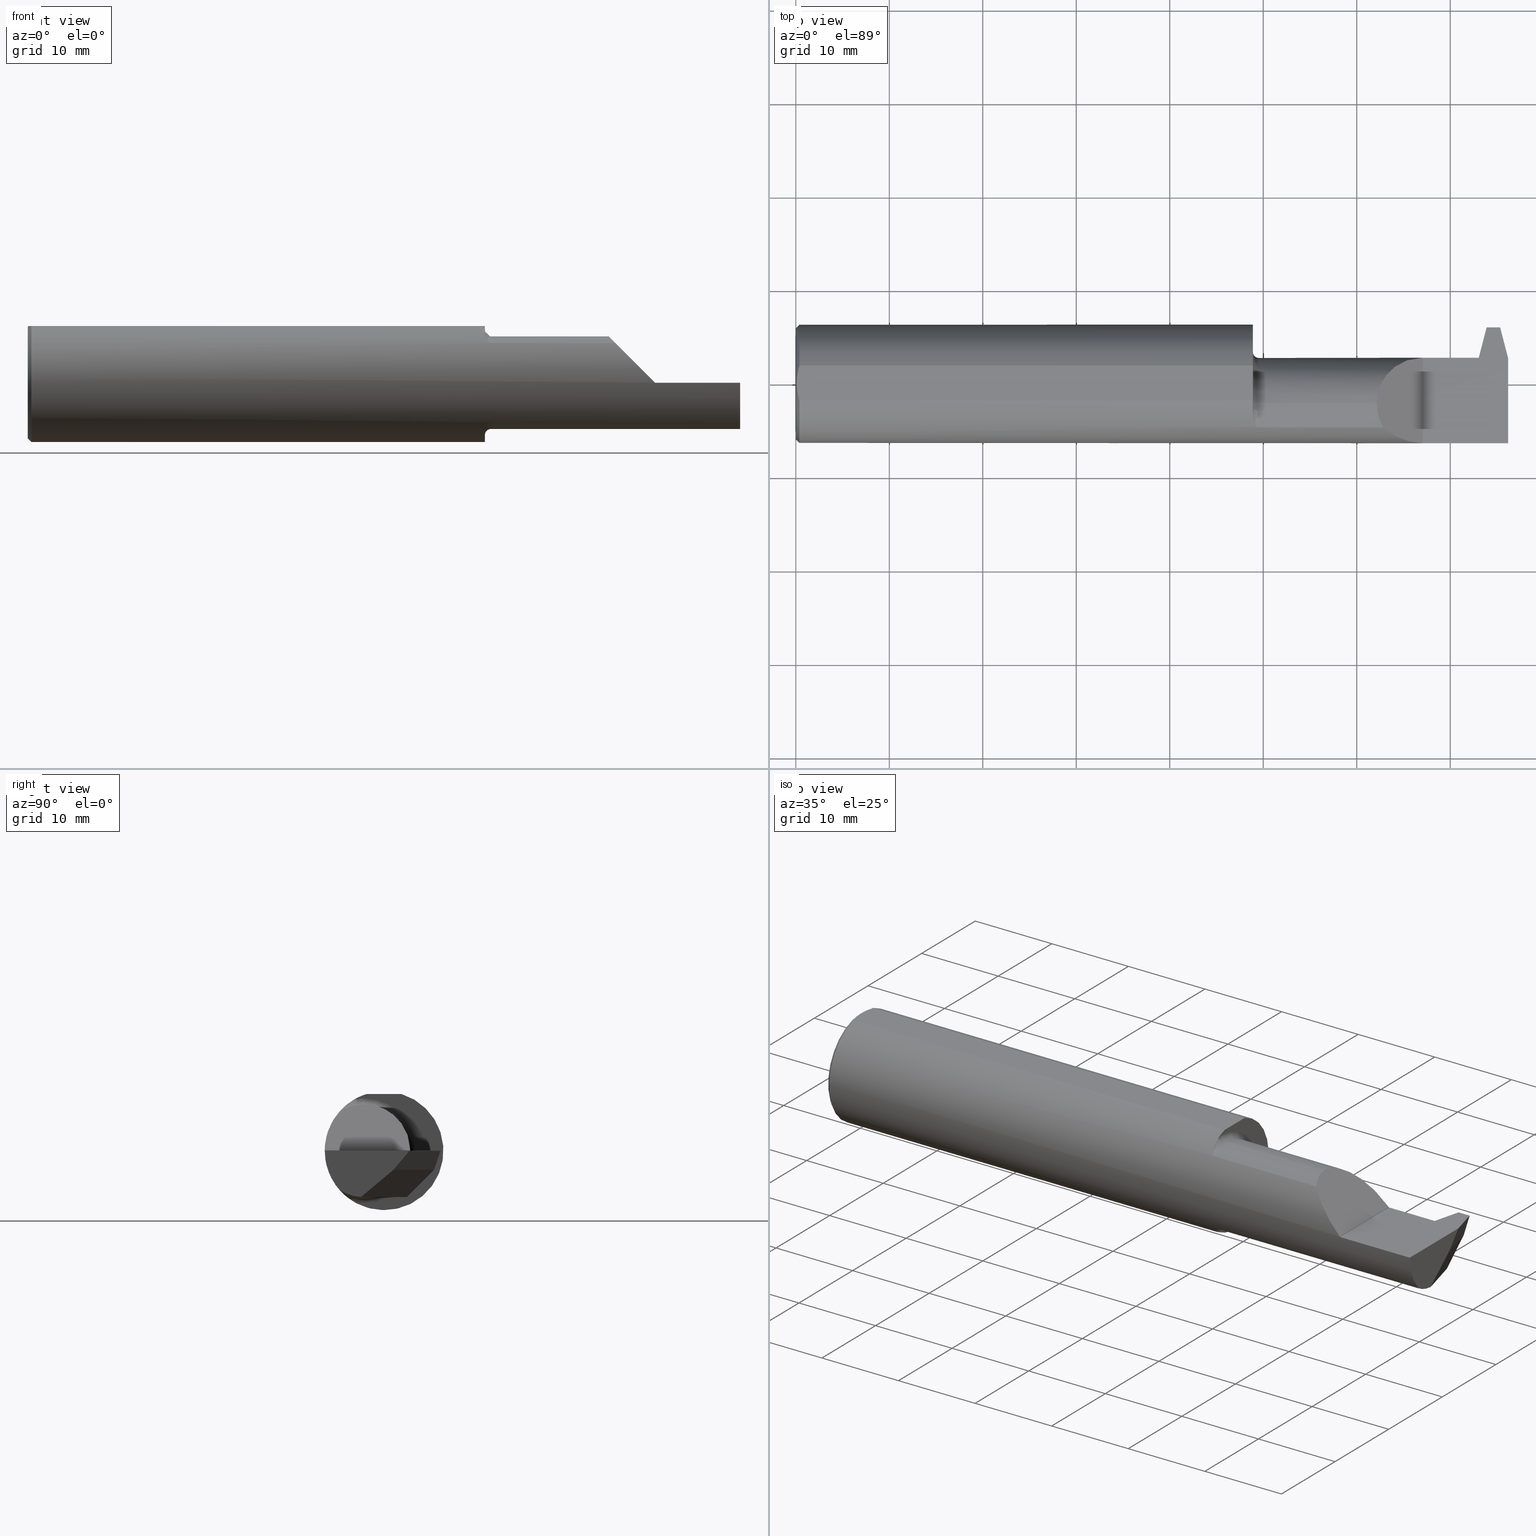
[diagram: canonical four-view strip — front | top / right | iso, engineering-drawing reading convention]
A machine part, canonical four-view strip (front | top / right | iso — engineering-drawing reading convention). The complete STEP part file that produces these views, byte-faithful:
ISO-10303-21;
HEADER;
FILE_DESCRIPTION (( 'STEP AP203' ),
    '1' );
FILE_NAME ('231075-FAT4901000-6.STEP',
    '2024-05-24T15:46:20',
    ( '' ),
    ( '' ),
    'SwSTEP 2.0',
    'SolidWorks 2022',
    '' );
FILE_SCHEMA (( 'CONFIG_CONTROL_DESIGN' ));
ENDSEC;

DATA;
#1 = LOCAL_TIME ( 8, 46, 20.00000000000000000, #297 ) ;
#2 = LINE ( 'NONE', #690, #64 ) ;
#3 = ORIENTED_EDGE ( 'NONE', *, *, #432, .F. ) ;
#4 = ADVANCED_FACE ( 'NONE', ( #602 ), #904, .F. ) ;
#5 = CARTESIAN_POINT ( 'NONE',  ( 1.946370180837897479, -0.1857053627698156684, -0.1671515984899562823 ) ) ;
#6 = VERTEX_POINT ( 'NONE', #979 ) ;
#7 = PERSON_AND_ORGANIZATION ( #273, #898 ) ;
#8 = CARTESIAN_POINT ( 'NONE',  ( 2.640000000000000124, -0.2498463527850666721, 0.001349999999999153743 ) ) ;
#9 = VERTEX_POINT ( 'NONE', #751 ) ;
#10 = CARTESIAN_POINT ( 'NONE',  ( 1.938813695058261288, -0.1803944576976549974, -0.1728909059399327819 ) ) ;
#11 = VECTOR ( 'NONE', #45, 39.37007874015748854 ) ;
#12 = ORIENTED_EDGE ( 'NONE', *, *, #210, .F. ) ;
#13 = ADVANCED_FACE ( 'NONE', ( #913 ), #54, .T. ) ;
#14 = AXIS2_PLACEMENT_3D ( 'NONE', #293, #352, #286 ) ;
#15 = B_SPLINE_CURVE_WITH_KNOTS ( 'NONE', 3,
 ( #865, #28, #189, #731 ),
 .UNSPECIFIED., .F., .F.,
 ( 4, 4 ),
 ( 0.005234717643982266660, 0.007106848166584502080 ),
 .UNSPECIFIED. ) ;
#16 = CARTESIAN_POINT ( 'NONE',  ( 1.925000000000000266, -0.08485000000000002263, 0.1950000000000000067 ) ) ;
#17 = ORIENTED_EDGE ( 'NONE', *, *, #587, .F. ) ;
#18 = DIRECTION ( 'NONE',  ( 0.000000000000000000, -0.2055210070593990190, -0.9786527043120508695 ) ) ;
#19 = ORIENTED_EDGE ( 'NONE', *, *, #638, .F. ) ;
#20 = DIMENSIONAL_EXPONENTS ( 1.000000000000000000, 0.000000000000000000, 0.000000000000000000, 0.000000000000000000, 0.000000000000000000, 0.000000000000000000, 0.000000000000000000 ) ;
#21 = ORIENTED_EDGE ( 'NONE', *, *, #329, .F. ) ;
#22 = DIRECTION ( 'NONE',  ( 1.000000000000000000, 8.537024980200913523E-16, -0.000000000000000000 ) ) ;
#23 = CARTESIAN_POINT ( 'NONE',  ( 2.875000000000000444, -0.08485000000000002263, 0.000000000000000000 ) ) ;
#24 = VERTEX_POINT ( 'NONE', #963 ) ;
#25 = ADVANCED_FACE ( 'NONE', ( #209 ), #231, .F. ) ;
#26 = CARTESIAN_POINT ( 'NONE',  ( 3.000000000000000444, 0.2999999999999999889, -6.123031769111886291E-17 ) ) ;
#27 = ORIENTED_EDGE ( 'NONE', *, *, #268, .F. ) ;
#28 = CARTESIAN_POINT ( 'NONE',  ( 0.008000051362619074735, 0.04946541355466502199, 0.2388499999999999790 ) ) ;
#29 = CARTESIAN_POINT ( 'NONE',  ( 2.865128570000000430, 0.1730363691085599065, -0.1891037151198368682 ) ) ;
#30 = ORIENTED_EDGE ( 'NONE', *, *, #919, .T. ) ;
#31 = AXIS2_PLACEMENT_3D ( 'NONE', #42, #343, #649 ) ;
#32 = AXIS2_PLACEMENT_3D ( 'NONE', #51, #596, #269 ) ;
#33 = CLOSED_SHELL ( 'NONE', ( #312, #611, #577, #536, #60, #436, #25, #705, #872, #13, #149, #202, #891, #171, #102, #666, #271, #745, #132, #4, #846, #855, #392, #696, #878, #458, #215, #583, #818 ) ) ;
#34 = EDGE_CURVE ( 'NONE', #186, #483, #372, .T. ) ;
#35 = CARTESIAN_POINT ( 'NONE',  ( 2.925035482665955922, 0.09560379093680540508, -0.1950000000000000344 ) ) ;
#36 = CARTESIAN_POINT ( 'NONE',  ( 2.869008559366363453, -0.03642100170329330006, -0.1888905294713771332 ) ) ;
#37 = DIRECTION ( 'NONE',  ( 0.000000000000000000, 0.000000000000000000, 1.000000000000000000 ) ) ;
#38 = ORIENTED_EDGE ( 'NONE', *, *, #727, .F. ) ;
#39 = CARTESIAN_POINT ( 'NONE',  ( 3.000000000000000444, 0.000000000000000000, 0.000000000000000000 ) ) ;
#40 = VERTEX_POINT ( 'NONE', #908 ) ;
#41 = CARTESIAN_POINT ( 'NONE',  ( 2.909103411012277540, 0.2381499999999800443, -6.123031769111886291E-17 ) ) ;
#42 = CARTESIAN_POINT ( 'NONE',  ( 0.01500000000000188856, 0.000000000000000000, 0.000000000000000000 ) ) ;
#43 = ORIENTED_EDGE ( 'NONE', *, *, #380, .T. ) ;
#44 = FACE_OUTER_BOUND ( 'NONE', #506, .T. ) ;
#45 = DIRECTION ( 'NONE',  ( 0.000000000000000000, -0.7660444431189791237, -0.6427876096865380307 ) ) ;
#46 = FACE_OUTER_BOUND ( 'NONE', #691, .T. ) ;
#47 = EDGE_LOOP ( 'NONE', ( #921, #435, #576, #38, #410, #391 ) ) ;
#48 = EDGE_CURVE ( 'NONE', #867, #334, #86, .T. ) ;
#49 = AXIS2_PLACEMENT_3D ( 'NONE', #661, #430, #732 ) ;
#50 = CIRCLE ( 'NONE', #194, 0.2498499999999999888 ) ;
#51 = CARTESIAN_POINT ( 'NONE',  ( 2.856000360214729472, 0.1101499999999999563, 0.000000000000000000 ) ) ;
#52 = CARTESIAN_POINT ( 'NONE',  ( 1.925000000000000266, -0.1250709781968178946, -0.2162921009026707309 ) ) ;
#53 = CARTESIAN_POINT ( 'NONE',  ( 2.640000000000000124, 0.2999999999999999889, 0.001349999999999153743 ) ) ;
#54 = PLANE ( 'NONE',  #320 ) ;
#55 = DIRECTION ( 'NONE',  ( -2.801895378117193014E-15, 3.589928453212653217E-15, -1.000000000000000000 ) ) ;
#56 = CARTESIAN_POINT ( 'NONE',  ( 2.875000000000000444, 0.1101499999999999840, 0.000000000000000000 ) ) ;
#57 = ORIENTED_EDGE ( 'NONE', *, *, #252, .F. ) ;
#58 = MANIFOLD_SOLID_BREP ( 'Cut-Sweep2', #33 ) ;
#59 = CARTESIAN_POINT ( 'NONE',  ( 2.875000000000000444, 0.1562050655388613762, -0.1950000000000000622 ) ) ;
#60 = ADVANCED_FACE ( 'NONE', ( #524 ), #756, .T. ) ;
#61 = CARTESIAN_POINT ( 'NONE',  ( 2.942943407995260330, 1.760242055220925250, 1.178345914460159349 ) ) ;
#62 = DIRECTION ( 'NONE',  ( -1.000000000000000000, -0.000000000000000000, -0.000000000000000000 ) ) ;
#63 = VERTEX_POINT ( 'NONE', #364 ) ;
#64 = VECTOR ( 'NONE', #313, 39.37007874015748143 ) ;
#65 = EDGE_CURVE ( 'NONE', #644, #877, #453, .T. ) ;
#66 = DIRECTION ( 'NONE',  ( -0.2945363905204919086, 0.000000000000000000, -0.9556402642517530799 ) ) ;
#67 = AXIS2_PLACEMENT_3D ( 'NONE', #282, #203, #746 ) ;
#68 = AXIS2_PLACEMENT_3D ( 'NONE', #528, #69, #674 ) ;
#69 = DIRECTION ( 'NONE',  ( 1.000000000000000000, 0.000000000000000000, 0.000000000000000000 ) ) ;
#70 = B_SPLINE_CURVE_WITH_KNOTS ( 'NONE', 3,
 ( #852, #930, #165, #838, #233, #927, #10, #245, #318, #5, #157, #922 ),
 .UNSPECIFIED., .F., .F.,
 ( 4, 2, 2, 2, 2, 4 ),
 ( 0.000000000000000000, 0.001097037258504890162, 0.001645555887757337412, 0.001919815202383554856, 0.002056944859696663037, 0.002194074517009771217 ),
 .UNSPECIFIED. ) ;
#71 = ORIENTED_EDGE ( 'NONE', *, *, #549, .T. ) ;
#72 = DIRECTION ( 'NONE',  ( 0.7071067811865547892, 0.000000000000000000, -0.7071067811865402453 ) ) ;
#73 = CARTESIAN_POINT ( 'NONE',  ( 2.955874287213053453, 0.2106037909368772276, -0.07999999999992658817 ) ) ;
#74 = EDGE_CURVE ( 'NONE', #650, #127, #668, .T. ) ;
#75 = APPROVAL ( #227, 'UNSPECIFIED' ) ;
#76 = APPROVAL_ROLE ( '' ) ;
#77 = DIRECTION ( 'NONE',  ( 0.000000000000000000, -1.000000000000000000, 0.000000000000000000 ) ) ;
#78 = DIRECTION ( 'NONE',  ( -0.9277270166603113211, 0.2399265199904066226, -0.2859332921571945962 ) ) ;
#79 = EDGE_LOOP ( 'NONE', ( #966, #561, #201, #738, #324, #864, #183, #319 ) ) ;
#80 = EDGE_CURVE ( 'NONE', #310, #63, #575, .T. ) ;
#81 = APPROVAL_ROLE ( '' ) ;
#82 = B_SPLINE_CURVE_WITH_KNOTS ( 'NONE', 3,
 ( #247, #547, #409, #118 ),
 .UNSPECIFIED., .F., .F.,
 ( 4, 4 ),
 ( 0.007106848166584502080, 0.008972081732692345837 ),
 .UNSPECIFIED. ) ;
#83 = CIRCLE ( 'NONE', #734, 0.2498499999999999888 ) ;
#84 = CARTESIAN_POINT ( 'NONE',  ( 3.000000000000000444, -0.07331916529803135518, 0.2388499999999998957 ) ) ;
#85 = ORIENTED_EDGE ( 'NONE', *, *, #599, .F. ) ;
#86 =( BOUNDED_CURVE ( )  B_SPLINE_CURVE ( 3, ( #290, #443, #219, #138 ),
 .UNSPECIFIED., .F., .F. ) 
 B_SPLINE_CURVE_WITH_KNOTS ( ( 4, 4 ),
 ( 0.000000000000000000, 0.5466004890170860220 ),
 .UNSPECIFIED. ) 
 CURVE ( )  GEOMETRIC_REPRESENTATION_ITEM ( )  RATIONAL_B_SPLINE_CURVE ( ( 1.000000000000000000, 0.9752569136661353166, 0.9752569136661353166, 1.000000000000000000 ) ) 
 REPRESENTATION_ITEM ( '' )  );
#87 = DIRECTION ( 'NONE',  ( 0.000000000000000000, 0.000000000000000000, -1.000000000000000000 ) ) ;
#88 = VERTEX_POINT ( 'NONE', #965 ) ;
#89 = EDGE_CURVE ( 'NONE', #326, #483, #131, .T. ) ;
#90 = CARTESIAN_POINT ( 'NONE',  ( 1.925000000000000266, -0.08485000000000002263, 0.000000000000000000 ) ) ;
#91 = ORIENTED_EDGE ( 'NONE', *, *, #840, .F. ) ;
#92 = CARTESIAN_POINT ( 'NONE',  ( 2.640000000000000124, 0.2999999999999999889, -6.123031769111886291E-17 ) ) ;
#93 = CARTESIAN_POINT ( 'NONE',  ( 2.578309325945297381, -0.2495130182814990771, 0.06304067405470248353 ) ) ;
#94 = AXIS2_PLACEMENT_3D ( 'NONE', #504, #425, #805 ) ;
#95 = CIRCLE ( 'NONE', #170, 0.2200000000000000011 ) ;
#96 = ORIENTED_EDGE ( 'NONE', *, *, #840, .T. ) ;
#97 = AXIS2_PLACEMENT_3D ( 'NONE', #539, #973, #311 ) ;
#98 = DIRECTION ( 'NONE',  ( 0.000000000000000000, 0.000000000000000000, -1.000000000000000000 ) ) ;
#99 = LINE ( 'NONE', #254, #861 ) ;
#100 = CARTESIAN_POINT ( 'NONE',  ( 3.000000000000000444, -0.1862082793164407113, -0.1665878123213411777 ) ) ;
#101 = VERTEX_POINT ( 'NONE', #594 ) ;
#102 = ADVANCED_FACE ( 'NONE', ( #748 ), #377, .T. ) ;
#103 = CC_DESIGN_PERSON_AND_ORGANIZATION_ASSIGNMENT ( #918, #982, ( #606 ) ) ;
#104 = FACE_OUTER_BOUND ( 'NONE', #236, .T. ) ;
#105 = ORIENTED_EDGE ( 'NONE', *, *, #523, .F. ) ;
#106 = LINE ( 'NONE', #714, #193 ) ;
#107 = DIRECTION ( 'NONE',  ( -1.000000000000000000, -0.000000000000000000, -0.000000000000000000 ) ) ;
#108 = ORIENTED_EDGE ( 'NONE', *, *, #693, .T. ) ;
#109 = FACE_OUTER_BOUND ( 'NONE', #553, .T. ) ;
#110 = ORIENTED_EDGE ( 'NONE', *, *, #905, .T. ) ;
#111 = DIRECTION ( 'NONE',  ( 1.000000000000000000, 0.000000000000000000, 0.000000000000000000 ) ) ;
#112 = DESIGN_CONTEXT ( 'detailed design', #468, 'design' ) ;
#113 = CARTESIAN_POINT ( 'NONE',  ( 0.01500000000000188856, 3.059780027669661931E-17, 0.2498499999999999888 ) ) ;
#114 = AXIS2_PLACEMENT_3D ( 'NONE', #402, #763, #18 ) ;
#115 = ORIENTED_EDGE ( 'NONE', *, *, #566, .F. ) ;
#116 = VECTOR ( 'NONE', #809, 39.37007874015748143 ) ;
#117 = VECTOR ( 'NONE', #206, 39.37007874015748854 ) ;
#118 = CARTESIAN_POINT ( 'NONE',  ( 0.01500000000000188509, -0.07331916529803116089, 0.2388499999999999790 ) ) ;
#119 = EDGE_LOOP ( 'NONE', ( #115, #716, #733, #900, #631 ) ) ;
#120 = CARTESIAN_POINT ( 'NONE',  ( 2.400000000000000355, -0.1862082793164408501, -0.1665878123213411499 ) ) ;
#121 = DIRECTION ( 'NONE',  ( 0.000000000000000000, -1.000000000000000000, 0.000000000000000000 ) ) ;
#122 = ORIENTED_EDGE ( 'NONE', *, *, #315, .F. ) ;
#123 = PLANE ( 'NONE',  #277 ) ;
#124 = PLANE ( 'NONE',  #49 ) ;
#125 = EDGE_LOOP ( 'NONE', ( #19, #481, #789 ) ) ;
#126 = CARTESIAN_POINT ( 'NONE',  ( 2.640000000000000124, 0.1101499999999999563, -6.123031769111885058E-17 ) ) ;
#127 = VERTEX_POINT ( 'NONE', #73 ) ;
#128 = VECTOR ( 'NONE', #77, 39.37007874015748143 ) ;
#129 =( LENGTH_UNIT ( ) NAMED_UNIT ( * ) SI_UNIT ( $, .METRE. ) );
#130 = CARTESIAN_POINT ( 'NONE',  ( 2.869008559366364786, -0.08485000000000002263, 0.000000000000000000 ) ) ;
#131 = LINE ( 'NONE', #285, #971 ) ;
#132 = ADVANCED_FACE ( 'NONE', ( #893 ), #607, .F. ) ;
#133 =( NAMED_UNIT ( * ) SI_UNIT ( $, .STERADIAN. ) SOLID_ANGLE_UNIT ( ) );
#134 = CARTESIAN_POINT ( 'NONE',  ( 1.925000000000000266, -0.08485000000000002263, 0.000000000000000000 ) ) ;
#135 = EDGE_CURVE ( 'NONE', #192, #695, #153, .T. ) ;
#136 = LINE ( 'NONE', #428, #718 ) ;
#137 = FACE_OUTER_BOUND ( 'NONE', #421, .T. ) ;
#138 = CARTESIAN_POINT ( 'NONE',  ( 2.474762187678658965, -0.1862082793164407668, 0.1665878123213410944 ) ) ;
#139 = VECTOR ( 'NONE', #869, 39.37007874015748143 ) ;
#140 = PERSON_AND_ORGANIZATION ( #273, #898 ) ;
#141 = VECTOR ( 'NONE', #178, 39.37007874015748143 ) ;
#142 = DIRECTION ( 'NONE',  ( -1.000000000000000000, -3.266703515499297450E-15, 3.893105650536435535E-15 ) ) ;
#143 = VECTOR ( 'NONE', #890, 39.37007874015748143 ) ;
#144 = CARTESIAN_POINT ( 'NONE',  ( 3.000000000000000444, 0.1562050655388613762, -0.1950000000000000622 ) ) ;
#145 = EDGE_LOOP ( 'NONE', ( #408, #497, #710, #110 ) ) ;
#146 =( BOUNDED_CURVE ( )  B_SPLINE_CURVE ( 3, ( #307, #911, #229, #532 ),
 .UNSPECIFIED., .F., .F. ) 
 B_SPLINE_CURVE_WITH_KNOTS ( ( 4, 4 ),
 ( 4.719312112611640408, 6.283185307179586232 ),
 .UNSPECIFIED. ) 
 CURVE ( )  GEOMETRIC_REPRESENTATION_ITEM ( )  RATIONAL_B_SPLINE_CURVE ( ( 1.000000000000000000, 0.8063668244950932262, 0.8063668244950932262, 1.000000000000000000 ) ) 
 REPRESENTATION_ITEM ( '' )  );
#147 = APPROVAL_STATUS ( 'not_yet_approved' ) ;
#148 = CARTESIAN_POINT ( 'NONE',  ( 1.925000000000000266, 0.1000000000000000056, 0.2388499999999999790 ) ) ;
#149 = ADVANCED_FACE ( 'NONE', ( #309 ), #697, .F. ) ;
#150 = CARTESIAN_POINT ( 'NONE',  ( 2.940817552797493573, 0.1700572141076777122, -0.1977558094796711685 ) ) ;
#151 = DATE_AND_TIME ( #615, #357 ) ;
#152 = ORIENTED_EDGE ( 'NONE', *, *, #812, .F. ) ;
#153 =( BOUNDED_CURVE ( )  B_SPLINE_CURVE ( 3, ( #240, #849, #620, #396 ),
 .UNSPECIFIED., .F., .F. ) 
 B_SPLINE_CURVE_WITH_KNOTS ( ( 4, 4 ),
 ( 1.156804228221840036, 1.570796326794896780 ),
 .UNSPECIFIED. ) 
 CURVE ( )  GEOMETRIC_REPRESENTATION_ITEM ( )  RATIONAL_B_SPLINE_CURVE ( ( 1.000000000000000000, 0.9857684695413670983, 0.9857684695413670983, 1.000000000000000000 ) ) 
 REPRESENTATION_ITEM ( '' )  );
#154 = SECURITY_CLASSIFICATION_LEVEL ( 'unclassified' ) ;
#155 = CIRCLE ( 'NONE', #579, 0.2498499999999999888 ) ;
#156 = CIRCLE ( 'NONE', #580, 0.2200000000000000011 ) ;
#157 = CARTESIAN_POINT ( 'NONE',  ( 1.948145221810430261, -0.1862082793164407390, -0.1665878123213412054 ) ) ;
#158 = VECTOR ( 'NONE', #817, 39.37007874015748143 ) ;
#159 = ORIENTED_EDGE ( 'NONE', *, *, #378, .F. ) ;
#160 = EDGE_CURVE ( 'NONE', #502, #310, #70, .T. ) ;
#161 = COORDINATED_UNIVERSAL_TIME_OFFSET ( 8, 0, .BEHIND. ) ;
#162 = CARTESIAN_POINT ( 'NONE',  ( 0.000000000000000000, 0.000000000000000000, -0.2348499999999984211 ) ) ;
#163 = ORIENTED_EDGE ( 'NONE', *, *, #422, .F. ) ;
#164 = CARTESIAN_POINT ( 'NONE',  ( 2.856000360214729472, 0.1101499999999999563, 0.000000000000000000 ) ) ;
#165 = CARTESIAN_POINT ( 'NONE',  ( 1.926272908852844301, -0.1494261110292506300, -0.2007428102137029102 ) ) ;
#166 = EDGE_LOOP ( 'NONE', ( #655, #71, #257, #819 ) ) ;
#167 = PLANE ( 'NONE',  #514 ) ;
#168 = VERTEX_POINT ( 'NONE', #548 ) ;
#169 = PLANE ( 'NONE',  #923 ) ;
#170 = AXIS2_PLACEMENT_3D ( 'NONE', #782, #353, #578 ) ;
#171 = ADVANCED_FACE ( 'NONE', ( #472 ), #694, .F. ) ;
#172 = CIRCLE ( 'NONE', #228, 0.2348499999999984211 ) ;
#173 = CARTESIAN_POINT ( 'NONE',  ( 2.875000000000000444, -0.08485000000000002263, 0.000000000000000000 ) ) ;
#174 = ORIENTED_EDGE ( 'NONE', *, *, #693, .F. ) ;
#175 = AXIS2_PLACEMENT_3D ( 'NONE', #903, #826, #208 ) ;
#176 = DIRECTION ( 'NONE',  ( 0.000000000000000000, -0.7660444431189791237, -0.6427876096865380307 ) ) ;
#177 = ORIENTED_EDGE ( 'NONE', *, *, #812, .T. ) ;
#178 = DIRECTION ( 'NONE',  ( -1.000000000000000000, -0.000000000000000000, -0.000000000000000000 ) ) ;
#179 = EDGE_CURVE ( 'NONE', #519, #88, #879, .T. ) ;
#180 = DIRECTION ( 'NONE',  ( -1.000000000000000000, -0.000000000000000000, -0.000000000000000000 ) ) ;
#181 = EDGE_LOOP ( 'NONE', ( #291, #629, #216, #427 ) ) ;
#182 = DIRECTION ( 'NONE',  ( 1.000000000000000000, 0.000000000000000000, 0.000000000000000000 ) ) ;
#183 = ORIENTED_EDGE ( 'NONE', *, *, #508, .F. ) ;
#184 = DIRECTION ( 'NONE',  ( 0.000000000000000000, 0.000000000000000000, -1.000000000000000000 ) ) ;
#185 = CARTESIAN_POINT ( 'NONE',  ( 1.948136090905396411, -0.1862082793164408501, 0.1665878123213412054 ) ) ;
#186 = VERTEX_POINT ( 'NONE', #537 ) ;
#187 = CARTESIAN_POINT ( 'NONE',  ( 3.000000000000000444, 0.09560379093680536344, -0.1950000000000000344 ) ) ;
#188 = VERTEX_POINT ( 'NONE', #162 ) ;
#189 = CARTESIAN_POINT ( 'NONE',  ( 0.004000000000001628989, 0.02507688590673098211, 0.2388499999999999790 ) ) ;
#190 = DIRECTION ( 'NONE',  ( 1.000000000000000000, 0.000000000000000000, 0.000000000000000000 ) ) ;
#191 = VECTOR ( 'NONE', #540, 39.37007874015748143 ) ;
#192 = VERTEX_POINT ( 'NONE', #394 ) ;
#193 = VECTOR ( 'NONE', #429, 39.37007874015748854 ) ;
#194 = AXIS2_PLACEMENT_3D ( 'NONE', #39, #929, #856 ) ;
#195 = AXIS2_PLACEMENT_3D ( 'NONE', #90, #775, #87 ) ;
#196 = EDGE_CURVE ( 'NONE', #242, #334, #366, .T. ) ;
#197 =( CONVERSION_BASED_UNIT ( 'INCH', #516 ) LENGTH_UNIT ( ) NAMED_UNIT ( #20 ) );
#198 = ORIENTED_EDGE ( 'NONE', *, *, #599, .T. ) ;
#199 = CARTESIAN_POINT ( 'NONE',  ( 3.000000000000000888, 0.03998231948180287071, -0.07999999999997388367 ) ) ;
#200 = DIRECTION ( 'NONE',  ( 1.000000000000000000, 3.266703515499297450E-15, -3.893105650536435535E-15 ) ) ;
#201 = ORIENTED_EDGE ( 'NONE', *, *, #65, .F. ) ;
#202 = ADVANCED_FACE ( 'NONE', ( #552 ), #469, .F. ) ;
#203 = DIRECTION ( 'NONE',  ( 1.000000000000000000, 0.000000000000000000, 0.000000000000000000 ) ) ;
#204 = DIRECTION ( 'NONE',  ( 1.000000000000000000, 0.000000000000000000, 0.000000000000000000 ) ) ;
#205 = ORIENTED_EDGE ( 'NONE', *, *, #802, .F. ) ;
#206 = DIRECTION ( 'NONE',  ( -0.1200238624775766955, 0.3232146245633365500, 0.9386834284807338280 ) ) ;
#207 = LINE ( 'NONE', #676, #116 ) ;
#208 = DIRECTION ( 'NONE',  ( 0.000000000000000000, -0.7071067811865435759, -0.7071067811865514585 ) ) ;
#209 = FACE_OUTER_BOUND ( 'NONE', #598, .T. ) ;
#210 = EDGE_CURVE ( 'NONE', #530, #744, #626, .T. ) ;
#211 = CC_DESIGN_SECURITY_CLASSIFICATION ( #478, ( #937 ) ) ;
#212 = DIRECTION ( 'NONE',  ( 1.000000000000000000, 0.000000000000000000, 0.000000000000000000 ) ) ;
#213 = CARTESIAN_POINT ( 'NONE',  ( 1.950000000000000178, -0.1862082793164408501, 0.1665878123213411499 ) ) ;
#214 = CARTESIAN_POINT ( 'NONE',  ( 3.000000000000000444, 0.000000000000000000, 0.000000000000000000 ) ) ;
#215 = ADVANCED_FACE ( 'NONE', ( #858 ), #169, .T. ) ;
#216 = ORIENTED_EDGE ( 'NONE', *, *, #487, .T. ) ;
#217 = FACE_OUTER_BOUND ( 'NONE', #749, .T. ) ;
#218 = DIRECTION ( 'NONE',  ( 1.000000000000000000, 0.000000000000000000, 0.000000000000000000 ) ) ;
#219 = CARTESIAN_POINT ( 'NONE',  ( 2.456061009574511012, -0.1554718819623029658, 0.1852889904254893250 ) ) ;
#220 = ORIENTED_EDGE ( 'NONE', *, *, #520, .F. ) ;
#221 = CALENDAR_DATE ( 2024, 24, 5 ) ;
#222 = DIRECTION ( 'NONE',  ( 1.000000000000000000, 0.000000000000000000, 0.000000000000000000 ) ) ;
#223 = CARTESIAN_POINT ( 'NONE',  ( 3.000000000000000444, -0.08485000000000002263, 0.000000000000000000 ) ) ;
#224 = DIRECTION ( 'NONE',  ( 0.000000000000000000, 0.000000000000000000, 1.000000000000000000 ) ) ;
#225 = ORIENTED_EDGE ( 'NONE', *, *, #777, .T. ) ;
#226 = EDGE_CURVE ( 'NONE', #444, #781, #386, .T. ) ;
#227 = APPROVAL_STATUS ( 'not_yet_approved' ) ;
#228 = AXIS2_PLACEMENT_3D ( 'NONE', #866, #948, #505 ) ;
#229 = CARTESIAN_POINT ( 'NONE',  ( 2.446349999999999802, 0.02875230614401349735, 0.1950000000000000344 ) ) ;
#230 = APPROVAL_PERSON_ORGANIZATION ( #604, #753, #76 ) ;
#231 = PLANE ( 'NONE',  #542 ) ;
#232 = CALENDAR_DATE ( 2024, 24, 5 ) ;
#233 = CARTESIAN_POINT ( 'NONE',  ( 1.932791519316737761, -0.1709869259022376575, -0.1822998300512940761 ) ) ;
#234 = ORIENTED_EDGE ( 'NONE', *, *, #34, .T. ) ;
#235 = CARTESIAN_POINT ( 'NONE',  ( 2.865128570000010644, 0.2106037909368113914, -0.07999999999999277134 ) ) ;
#236 = EDGE_LOOP ( 'NONE', ( #860, #839, #174, #845 ) ) ;
#237 = DATE_AND_TIME ( #221, #970 ) ;
#238 = VECTOR ( 'NONE', #630, 39.37007874015748143 ) ;
#239 = TOROIDAL_SURFACE ( 'NONE', #844, 0.2200000000000000011, 0.02500000000000000139 ) ;
#240 = CARTESIAN_POINT ( 'NONE',  ( 2.839527195321073005, 0.09367683510634318422, -0.07844213884713081841 ) ) ;
#241 = AXIS2_PLACEMENT_3D ( 'NONE', #613, #249, #916 ) ;
#242 = VERTEX_POINT ( 'NONE', #390 ) ;
#243 = EDGE_CURVE ( 'NONE', #168, #326, #2, .T. ) ;
#244 = DIRECTION ( 'NONE',  ( 0.000000000000000000, 0.000000000000000000, -1.000000000000000000 ) ) ;
#245 = CARTESIAN_POINT ( 'NONE',  ( 1.942154182526138362, -0.1833665275214914070, -0.1697169404947845295 ) ) ;
#246 = ORIENTED_EDGE ( 'NONE', *, *, #315, .T. ) ;
#247 = CARTESIAN_POINT ( 'NONE',  ( 0.004000000000001630723, -8.838795635097487697E-18, 0.2388499999999999790 ) ) ;
#248 = ORIENTED_EDGE ( 'NONE', *, *, #317, .F. ) ;
#249 = DIRECTION ( 'NONE',  ( 0.9474803064293678689, -0.2450350680735346454, 0.2055210070593990190 ) ) ;
#250 = CC_DESIGN_DATE_AND_TIME_ASSIGNMENT ( #600, #910, ( #606 ) ) ;
#251 = VERTEX_POINT ( 'NONE', #843 ) ;
#252 = EDGE_CURVE ( 'NONE', #127, #101, #616, .T. ) ;
#253 = ORIENTED_EDGE ( 'NONE', *, *, #947, .T. ) ;
#254 = CARTESIAN_POINT ( 'NONE',  ( 1.925000000000000266, 0.09276125059353615421, -0.08049374921445828779 ) ) ;
#255 = CIRCLE ( 'NONE', #968, 0.1950000000000000067 ) ;
#256 = CARTESIAN_POINT ( 'NONE',  ( 1.926293471060601004, -0.1495312910450006805, 0.2006610765018840559 ) ) ;
#257 = ORIENTED_EDGE ( 'NONE', *, *, #179, .F. ) ;
#258 = FACE_OUTER_BOUND ( 'NONE', #909, .T. ) ;
#259 = ORIENTED_EDGE ( 'NONE', *, *, #587, .T. ) ;
#260 = FACE_OUTER_BOUND ( 'NONE', #894, .T. ) ;
#261 = PLANE ( 'NONE',  #175 ) ;
#262 = ORIENTED_EDGE ( 'NONE', *, *, #739, .F. ) ;
#263 = LINE ( 'NONE', #187, #862 ) ;
#264 = VERTEX_POINT ( 'NONE', #634 ) ;
#265 = DIRECTION ( 'NONE',  ( 1.000000000000000000, 0.000000000000000000, 0.000000000000000000 ) ) ;
#266 = LINE ( 'NONE', #113, #673 ) ;
#267 = ORIENTED_EDGE ( 'NONE', *, *, #414, .F. ) ;
#268 = EDGE_CURVE ( 'NONE', #695, #40, #341, .T. ) ;
#269 = DIRECTION ( 'NONE',  ( 0.2055210070593990190, 0.000000000000000000, 0.9786527043120508695 ) ) ;
#270 = EDGE_CURVE ( 'NONE', #953, #63, #792, .T. ) ;
#271 = ADVANCED_FACE ( 'NONE', ( #946 ), #883, .F. ) ;
#272 = CARTESIAN_POINT ( 'NONE',  ( 1.925000000000000266, -0.08484999999999999487, -0.1950000000000000067 ) ) ;
#273 = PERSON ( 'UNSPECIFIED', 'UNSPECIFIED', 'UNSPECIFIED', ('UNSPECIFIED'), ('UNSPECIFIED'), ('UNSPECIFIED') ) ;
#274 = FACE_OUTER_BOUND ( 'NONE', #397, .T. ) ;
#275 = ORIENTED_EDGE ( 'NONE', *, *, #74, .T. ) ;
#276 = VECTOR ( 'NONE', #741, 39.37007874015748143 ) ;
#277 = AXIS2_PLACEMENT_3D ( 'NONE', #438, #656, #574 ) ;
#278 = CARTESIAN_POINT ( 'NONE',  ( 2.875000000000000444, -0.08485000000000003650, -0.1950000000000000067 ) ) ;
#279 = CARTESIAN_POINT ( 'NONE',  ( 2.640000000000000124, -0.2498499999999999610, -6.123031769111885058E-17 ) ) ;
#280 = DIRECTION ( 'NONE',  ( 1.000000000000000000, -0.000000000000000000, -0.000000000000000000 ) ) ;
#281 = ORIENTED_EDGE ( 'NONE', *, *, #632, .T. ) ;
#282 = CARTESIAN_POINT ( 'NONE',  ( 1.950000000000000178, -0.08485000000000002263, 0.000000000000000000 ) ) ;
#283 = EDGE_CURVE ( 'NONE', #6, #953, #875, .T. ) ;
#284 = CARTESIAN_POINT ( 'NONE',  ( 1.925000000000000266, -0.1250709781968178946, 0.2162921009026707309 ) ) ;
#285 = CARTESIAN_POINT ( 'NONE',  ( 2.640000000000000124, 0.2999999999999999889, -6.123031769111886291E-17 ) ) ;
#286 = DIRECTION ( 'NONE',  ( -0.000000000000000000, 0.000000000000000000, 1.000000000000000000 ) ) ;
#287 = EDGE_CURVE ( 'NONE', #88, #473, #95, .T. ) ;
#288 = CARTESIAN_POINT ( 'NONE',  ( 2.400000000000000355, -0.1862082793164408501, 0.1665878123213411499 ) ) ;
#289 = DIRECTION ( 'NONE',  ( 0.000000000000000000, -1.000000000000000000, 0.000000000000000000 ) ) ;
#290 = CARTESIAN_POINT ( 'NONE',  ( 2.446350000000000691, -0.08485000000000002263, 0.1950000000000000067 ) ) ;
#291 = ORIENTED_EDGE ( 'NONE', *, *, #422, .T. ) ;
#292 = AXIS2_PLACEMENT_3D ( 'NONE', #61, #359, #66 ) ;
#293 = CARTESIAN_POINT ( 'NONE',  ( 2.875000000000000444, 0.1101499999999999840, 0.000000000000000000 ) ) ;
#294 = DIRECTION ( 'NONE',  ( 0.000000000000000000, 0.000000000000000000, 1.000000000000000000 ) ) ;
#295 = ORIENTED_EDGE ( 'NONE', *, *, #65, .T. ) ;
#296 = ORIENTED_EDGE ( 'NONE', *, *, #887, .F. ) ;
#297 = COORDINATED_UNIVERSAL_TIME_OFFSET ( 8, 0, .BEHIND. ) ;
#298 = DIRECTION ( 'NONE',  ( 0.2503800040544357230, -0.9681476403781091866, 0.000000000000000000 ) ) ;
#299 = DIRECTION ( 'NONE',  ( 0.000000000000000000, -1.000000000000000000, 2.833219857418689288E-16 ) ) ;
#300 = VERTEX_POINT ( 'NONE', #36 ) ;
#301 = LINE ( 'NONE', #527, #276 ) ;
#302 = CARTESIAN_POINT ( 'NONE',  ( 2.640000000000000124, -0.08485000000000002263, 0.000000000000000000 ) ) ;
#303 = ORIENTED_EDGE ( 'NONE', *, *, #89, .F. ) ;
#304 = CIRCLE ( 'NONE', #936, 0.1950000000000000067 ) ;
#305 = MECHANICAL_CONTEXT ( 'NONE', #371, 'mechanical' ) ;
#306 = CIRCLE ( 'NONE', #466, 0.2348499999999984211 ) ;
#307 = CARTESIAN_POINT ( 'NONE',  ( 2.640000000000000124, 0.1101453268670816443, 0.001349999999999153743 ) ) ;
#308 = AXIS2_PLACEMENT_3D ( 'NONE', #780, #347, #244 ) ;
#309 = FACE_OUTER_BOUND ( 'NONE', #416, .T. ) ;
#310 = VERTEX_POINT ( 'NONE', #490 ) ;
#311 = DIRECTION ( 'NONE',  ( 1.000000000000000000, 0.000000000000000000, 0.000000000000000000 ) ) ;
#312 = ADVANCED_FACE ( 'NONE', ( #653 ), #239, .F. ) ;
#313 = DIRECTION ( 'NONE',  ( -1.000000000000000000, -0.000000000000000000, -0.000000000000000000 ) ) ;
#314 = VERTEX_POINT ( 'NONE', #958 ) ;
#315 = EDGE_CURVE ( 'NONE', #720, #127, #106, .T. ) ;
#316 = APPROVAL_STATUS ( 'not_yet_approved' ) ;
#317 = EDGE_CURVE ( 'NONE', #444, #519, #155, .T. ) ;
#318 = CARTESIAN_POINT ( 'NONE',  ( 1.943416617075090169, -0.1842851675631634878, -0.1687160800144227035 ) ) ;
#319 = ORIENTED_EDGE ( 'NONE', *, *, #919, .F. ) ;
#320 = AXIS2_PLACEMENT_3D ( 'NONE', #56, #827, #382 ) ;
#321 = AXIS2_PLACEMENT_3D ( 'NONE', #446, #511, #815 ) ;
#322 = AXIS2_PLACEMENT_3D ( 'NONE', #223, #742, #975 ) ;
#323 = CARTESIAN_POINT ( 'NONE',  ( 2.474762187678658965, -0.1862082793164407668, 0.1665878123213410944 ) ) ;
#324 = ORIENTED_EDGE ( 'NONE', *, *, #346, .T. ) ;
#325 = PLANE ( 'NONE',  #544 ) ;
#326 = VERTEX_POINT ( 'NONE', #279 ) ;
#327 = CARTESIAN_POINT ( 'NONE',  ( 3.000000000000000444, -0.04370198515462724725, -0.1950000000000000067 ) ) ;
#328 = ORIENTED_EDGE ( 'NONE', *, *, #270, .T. ) ;
#329 = EDGE_CURVE ( 'NONE', #9, #348, #15, .T. ) ;
#330 = CARTESIAN_POINT ( 'NONE',  ( 3.000000000000000444, -0.09664390695082933358, -0.1946430162087383620 ) ) ;
#331 = ORIENTED_EDGE ( 'NONE', *, *, #160, .F. ) ;
#332 = CARTESIAN_POINT ( 'NONE',  ( 2.889008559366363471, 3.895685540389334012, 3.110538619748305589 ) ) ;
#333 = CARTESIAN_POINT ( 'NONE',  ( 2.640000000000000124, 0.000000000000000000, 0.000000000000000000 ) ) ;
#334 = VERTEX_POINT ( 'NONE', #498 ) ;
#335 = LINE ( 'NONE', #642, #554 ) ;
#336 = VECTOR ( 'NONE', #265, 39.37007874015748143 ) ;
#337 = VECTOR ( 'NONE', #415, 39.37007874015748854 ) ;
#338 = DIRECTION ( 'NONE',  ( -4.323842087966489274E-14, -0.9455185755993169572, 0.3255681544571564778 ) ) ;
#339 = ORIENTED_EDGE ( 'NONE', *, *, #226, .T. ) ;
#340 = DIRECTION ( 'NONE',  ( -1.000000000000000000, -0.000000000000000000, -0.000000000000000000 ) ) ;
#341 = LINE ( 'NONE', #787, #448 ) ;
#342 = EDGE_CURVE ( 'NONE', #650, #344, #585, .T. ) ;
#343 = DIRECTION ( 'NONE',  ( 1.000000000000000000, -0.000000000000000000, -0.000000000000000000 ) ) ;
#344 = VERTEX_POINT ( 'NONE', #41 ) ;
#345 = EDGE_CURVE ( 'NONE', #483, #695, #406, .T. ) ;
#346 = EDGE_CURVE ( 'NONE', #314, #530, #565, .T. ) ;
#347 = DIRECTION ( 'NONE',  ( 1.000000000000000000, -0.000000000000000000, -0.000000000000000000 ) ) ;
#348 = VERTEX_POINT ( 'NONE', #721 ) ;
#349 = LINE ( 'NONE', #120, #141 ) ;
#350 = CARTESIAN_POINT ( 'NONE',  ( 1.925000000000000711, -0.1376662443218121257, 0.2090088841401171182 ) ) ;
#351 = VERTEX_POINT ( 'NONE', #199 ) ;
#352 = DIRECTION ( 'NONE',  ( -1.000000000000000000, 0.000000000000000000, -0.000000000000000000 ) ) ;
#353 = DIRECTION ( 'NONE',  ( -1.000000000000000000, -0.000000000000000000, -0.000000000000000000 ) ) ;
#354 = CARTESIAN_POINT ( 'NONE',  ( 1.950000000000000178, -0.08485000000000002263, 0.1950000000000000067 ) ) ;
#355 = ORIENTED_EDGE ( 'NONE', *, *, #160, .T. ) ;
#356 = AXIS2_PLACEMENT_3D ( 'NONE', #806, #190, #800 ) ;
#357 = LOCAL_TIME ( 8, 46, 20.00000000000000000, #455 ) ;
#358 = LINE ( 'NONE', #901, #847 ) ;
#359 = DIRECTION ( 'NONE',  ( 0.9277270166603126533, 0.2399265199904045409, -0.2859332921571920982 ) ) ;
#360 = ORIENTED_EDGE ( 'NONE', *, *, #767, .F. ) ;
#361 = EDGE_CURVE ( 'NONE', #682, #310, #349, .T. ) ;
#362 = CARTESIAN_POINT ( 'NONE',  ( 2.875000000000000444, 0.09276125059353650115, -0.08049374921445756614 ) ) ;
#363 = CARTESIAN_POINT ( 'NONE',  ( 1.925000000000000266, -0.08485000000000002263, -0.2200000000000000011 ) ) ;
#364 = CARTESIAN_POINT ( 'NONE',  ( 1.950000000000000178, -0.08484999999999999487, -0.1950000000000000067 ) ) ;
#365 = VERTEX_POINT ( 'NONE', #933 ) ;
#366 =( BOUNDED_CURVE ( )  B_SPLINE_CURVE ( 3, ( #8, #93, #772, #323 ),
 .UNSPECIFIED., .F., .F. ) 
 B_SPLINE_CURVE_WITH_KNOTS ( ( 4, 4 ),
 ( 4.717792248621494267, 5.442230189998084278 ),
 .UNSPECIFIED. ) 
 CURVE ( )  GEOMETRIC_REPRESENTATION_ITEM ( )  RATIONAL_B_SPLINE_CURVE ( ( 1.000000000000000000, 0.9567418893490838849, 0.9567418893490838849, 1.000000000000000000 ) ) 
 REPRESENTATION_ITEM ( '' )  );
#367 = CARTESIAN_POINT ( 'NONE',  ( 1.925000000000000266, -0.03642100170329384129, -0.1888905294713782990 ) ) ;
#368 = CYLINDRICAL_SURFACE ( 'NONE', #418, 0.1950000000000000067 ) ;
#369 = DIRECTION ( 'NONE',  ( -1.000000000000000000, -0.000000000000000000, -0.000000000000000000 ) ) ;
#370 = B_SPLINE_CURVE_WITH_KNOTS ( 'NONE', 3,
 ( #407, #185, #709, #654, #491, #485, #728, #783, #501, #256, #350, #859 ),
 .UNSPECIFIED., .F., .F.,
 ( 4, 2, 2, 2, 2, 4 ),
 ( 0.000000000000000000, 0.0001393948641635522000, 0.0002787897283271044001, 0.0005575794566542089086, 0.001115158913308419552, 0.002230317826616845175 ),
 .UNSPECIFIED. ) ;
#371 = APPLICATION_CONTEXT ( 'configuration controlled 3d designs of mechanical parts and assemblies' ) ;
#372 = CIRCLE ( 'NONE', #699, 0.1950000000000000067 ) ;
#373 = CC_DESIGN_PERSON_AND_ORGANIZATION_ASSIGNMENT ( #842, #384, ( #937 ) ) ;
#374 = AXIS2_PLACEMENT_3D ( 'NONE', #522, #825, #456 ) ;
#375 = AXIS2_PLACEMENT_3D ( 'NONE', #677, #590, #835 ) ;
#376 = CARTESIAN_POINT ( 'NONE',  ( 2.579423879288046617, 1.666229512840847971, -0.07999999999952162044 ) ) ;
#377 = CYLINDRICAL_SURFACE ( 'NONE', #625, 0.2498499999999999888 ) ;
#378 = EDGE_CURVE ( 'NONE', #510, #351, #888, .T. ) ;
#379 = ORIENTED_EDGE ( 'NONE', *, *, #671, .F. ) ;
#380 = EDGE_CURVE ( 'NONE', #877, #454, #99, .T. ) ;
#381 = CARTESIAN_POINT ( 'NONE',  ( 1.925000000000000266, -0.08485000000000002263, 0.000000000000000000 ) ) ;
#382 = DIRECTION ( 'NONE',  ( -0.000000000000000000, 0.000000000000000000, 1.000000000000000000 ) ) ;
#383 = ORIENTED_EDGE ( 'NONE', *, *, #711, .F. ) ;
#384 = PERSON_AND_ORGANIZATION_ROLE ( 'creator' ) ;
#385 = LINE ( 'NONE', #759, #924 ) ;
#386 = LINE ( 'NONE', #84, #496 ) ;
#387 = TOROIDAL_SURFACE ( 'NONE', #356, 0.2200000000000000011, 0.02500000000000000139 ) ;
#388 = EDGE_CURVE ( 'NONE', #314, #101, #335, .T. ) ;
#389 = APPROVAL_ROLE ( '' ) ;
#390 = CARTESIAN_POINT ( 'NONE',  ( 2.640000000000000124, -0.2498463527850666721, 0.001349999999999153743 ) ) ;
#391 = ORIENTED_EDGE ( 'NONE', *, *, #80, .T. ) ;
#392 = ADVANCED_FACE ( 'NONE', ( #260 ), #637, .F. ) ;
#393 = APPLICATION_PROTOCOL_DEFINITION ( 'international standard', 'config_control_design', 1994, #468 ) ;
#394 = CARTESIAN_POINT ( 'NONE',  ( 2.839527195321073005, 0.09367683510634318422, -0.07844213884713081841 ) ) ;
#395 = ORIENTED_EDGE ( 'NONE', *, *, #803, .T. ) ;
#396 = CARTESIAN_POINT ( 'NONE',  ( 2.856000360214729472, 0.1101499999999999563, 0.000000000000000000 ) ) ;
#397 = EDGE_LOOP ( 'NONE', ( #791, #627, #198, #833 ) ) ;
#398 = AXIS2_PLACEMENT_3D ( 'NONE', #769, #461, #703 ) ;
#399 = CIRCLE ( 'NONE', #374, 0.02500000000000000486 ) ;
#400 = DIRECTION ( 'NONE',  ( -1.000000000000000000, -0.000000000000000000, -0.000000000000000000 ) ) ;
#401 =( GEOMETRIC_REPRESENTATION_CONTEXT ( 3 ) GLOBAL_UNCERTAINTY_ASSIGNED_CONTEXT ( ( #434 ) ) GLOBAL_UNIT_ASSIGNED_CONTEXT ( ( #197, #824, #133 ) ) REPRESENTATION_CONTEXT ( 'NONE', 'WORKASPACE' ) );
#402 = CARTESIAN_POINT ( 'NONE',  ( 2.876000360214729490, 0.1101499999999999702, 0.000000000000000000 ) ) ;
#403 = ORIENTED_EDGE ( 'NONE', *, *, #252, .T. ) ;
#404 = DIRECTION ( 'NONE',  ( -1.000000000000000000, -0.000000000000000000, -0.000000000000000000 ) ) ;
#405 = VERTEX_POINT ( 'NONE', #667 ) ;
#406 = LINE ( 'NONE', #708, #336 ) ;
#407 = CARTESIAN_POINT ( 'NONE',  ( 1.950000000000000178, -0.1862082793164408501, 0.1665878123213411499 ) ) ;
#408 = ORIENTED_EDGE ( 'NONE', *, *, #915, .T. ) ;
#409 = CARTESIAN_POINT ( 'NONE',  ( 0.007978205860499350960, -0.04939097055354213506, 0.2388499999999999790 ) ) ;
#410 = ORIENTED_EDGE ( 'NONE', *, *, #361, .T. ) ;
#411 = CARTESIAN_POINT ( 'NONE',  ( 3.000000000000000444, -0.08485000000000003650, -0.1950000000000000067 ) ) ;
#412 = FACE_OUTER_BOUND ( 'NONE', #784, .T. ) ;
#413 = EDGE_LOOP ( 'NONE', ( #17, #669, #21, #379, #267 ) ) ;
#414 = EDGE_CURVE ( 'NONE', #188, #251, #830, .T. ) ;
#415 = DIRECTION ( 'NONE',  ( -0.000000000000000000, 0.7660444431189790127, 0.6427876096865380307 ) ) ;
#416 = EDGE_LOOP ( 'NONE', ( #794, #776, #573, #980 ) ) ;
#417 = CARTESIAN_POINT ( 'NONE',  ( 1.925000000000000266, 0.000000000000000000, 0.000000000000000000 ) ) ;
#418 = AXIS2_PLACEMENT_3D ( 'NONE', #381, #517, #294 ) ;
#419 = APPROVAL_PERSON_ORGANIZATION ( #7, #75, #81 ) ;
#420 = FACE_OUTER_BOUND ( 'NONE', #413, .T. ) ;
#421 = EDGE_LOOP ( 'NONE', ( #698, #328, #786, #262, #431, #234, #470, #770, #621, #949, #43, #636, #30 ) ) ;
#422 = EDGE_CURVE ( 'NONE', #351, #127, #754, .T. ) ;
#423 = CARTESIAN_POINT ( 'NONE',  ( 0.000000000000000000, 0.000000000000000000, 0.000000000000000000 ) ) ;
#424 = ORIENTED_EDGE ( 'NONE', *, *, #196, .T. ) ;
#425 = DIRECTION ( 'NONE',  ( -0.000000000000000000, 0.000000000000000000, -1.000000000000000000 ) ) ;
#426 = DIRECTION ( 'NONE',  ( 0.7071067811865547892, 8.659560562354844111E-17, 0.7071067811865402453 ) ) ;
#427 = ORIENTED_EDGE ( 'NONE', *, *, #378, .T. ) ;
#428 = CARTESIAN_POINT ( 'NONE',  ( 2.915278850020252666, 0.2923463849234833045, 0.001742593986680086556 ) ) ;
#429 = DIRECTION ( 'NONE',  ( 0.03504448777032885542, 0.7066724431718361954, 0.7066724431718439670 ) ) ;
#430 = DIRECTION ( 'NONE',  ( -0.000000000000000000, 0.000000000000000000, -1.000000000000000000 ) ) ;
#431 = ORIENTED_EDGE ( 'NONE', *, *, #562, .F. ) ;
#432 = EDGE_CURVE ( 'NONE', #644, #24, #301, .T. ) ;
#433 = DIRECTION ( 'NONE',  ( 1.000000000000000000, 0.000000000000000000, 0.000000000000000000 ) ) ;
#434 = UNCERTAINTY_MEASURE_WITH_UNIT (LENGTH_MEASURE( 1.000000000000000082E-05 ), #197, 'distance_accuracy_value', 'NONE');
#435 = ORIENTED_EDGE ( 'NONE', *, *, #283, .F. ) ;
#436 = ADVANCED_FACE ( 'NONE', ( #589 ), #368, .T. ) ;
#437 = CONICAL_SURFACE ( 'NONE', #308, 0.2498499999999999888, 0.7853981633974380649 ) ;
#438 = CARTESIAN_POINT ( 'NONE',  ( 3.000000000000000444, 0.000000000000000000, 0.000000000000000000 ) ) ;
#439 = CYLINDRICAL_SURFACE ( 'NONE', #954, 0.1950000000000000067 ) ;
#440 = CARTESIAN_POINT ( 'NONE',  ( 2.950171339358596434, 0.09560379093680537732, -0.1950000000000000344 ) ) ;
#441 = ORIENTED_EDGE ( 'NONE', *, *, #802, .T. ) ;
#442 = PLANE ( 'NONE',  #292 ) ;
#443 = CARTESIAN_POINT ( 'NONE',  ( 2.446349999999999802, -0.1208286073214975276, 0.1950000000000000344 ) ) ;
#444 = VERTEX_POINT ( 'NONE', #747 ) ;
#445 = EDGE_CURVE ( 'NONE', #40, #344, #207, .T. ) ;
#446 = CARTESIAN_POINT ( 'NONE',  ( 0.01500000000000188856, 0.000000000000000000, 0.000000000000000000 ) ) ;
#447 = DIRECTION ( 'NONE',  ( 0.000000000000000000, 0.000000000000000000, 1.000000000000000000 ) ) ;
#448 = VECTOR ( 'NONE', #22, 39.37007874015748143 ) ;
#449 = AXIS2_PLACEMENT_3D ( 'NONE', #130, #142, #55 ) ;
#450 = VECTOR ( 'NONE', #176, 39.37007874015748854 ) ;
#451 = CARTESIAN_POINT ( 'NONE',  ( 2.889008559366363471, -0.04370198515462639377, -0.1949999999999988687 ) ) ;
#452 = LINE ( 'NONE', #53, #881 ) ;
#453 = LINE ( 'NONE', #976, #158 ) ;
#454 = VERTEX_POINT ( 'NONE', #897 ) ;
#455 = COORDINATED_UNIVERSAL_TIME_OFFSET ( 8, 0, .BEHIND. ) ;
#456 = DIRECTION ( 'NONE',  ( 0.000000000000000000, 0.000000000000000000, 1.000000000000000000 ) ) ;
#457 = EDGE_LOOP ( 'NONE', ( #871, #477, #27, #614, #303, #811, #177, #652 ) ) ;
#458 = ADVANCED_FACE ( 'NONE', ( #735 ), #442, .T. ) ;
#459 = CC_DESIGN_DATE_AND_TIME_ASSIGNMENT ( #237, #465, ( #478 ) ) ;
#460 = DATE_AND_TIME ( #906, #737 ) ;
#461 = DIRECTION ( 'NONE',  ( -0.9474803064293675359, -0.2450350680735358111, 0.2055210070593990745 ) ) ;
#462 = ORIENTED_EDGE ( 'NONE', *, *, #941, .T. ) ;
#463 = EDGE_CURVE ( 'NONE', #9, #365, #605, .T. ) ;
#464 = VECTOR ( 'NONE', #907, 39.37007874015748143 ) ;
#465 = DATE_TIME_ROLE ( 'classification_date' ) ;
#466 = AXIS2_PLACEMENT_3D ( 'NONE', #423, #340, #707 ) ;
#467 = VERTEX_POINT ( 'NONE', #213 ) ;
#468 = APPLICATION_CONTEXT ( 'configuration controlled 3d designs of mechanical parts and assemblies' ) ;
#469 = PLANE ( 'NONE',  #114 ) ;
#470 = ORIENTED_EDGE ( 'NONE', *, *, #345, .T. ) ;
#471 = PLANE ( 'NONE',  #926 ) ;
#472 = FACE_OUTER_BOUND ( 'NONE', #181, .T. ) ;
#473 = VERTEX_POINT ( 'NONE', #363 ) ;
#474 = AXIS2_PLACEMENT_3D ( 'NONE', #513, #743, #822 ) ;
#475 = AXIS2_PLACEMENT_3D ( 'NONE', #173, #560, #37 ) ;
#476 = CARTESIAN_POINT ( 'NONE',  ( 1.925000000000000266, -0.08485000000000002263, 0.000000000000000000 ) ) ;
#477 = ORIENTED_EDGE ( 'NONE', *, *, #445, .F. ) ;
#478 = SECURITY_CLASSIFICATION ( '', '', #154 ) ;
#479 = DIRECTION ( 'NONE',  ( 0.000000000000000000, -0.6426264403010678583, -0.7661796514042761297 ) ) ;
#480 = DIRECTION ( 'NONE',  ( 0.000000000000000000, 0.000000000000000000, -1.000000000000000000 ) ) ;
#481 = ORIENTED_EDGE ( 'NONE', *, *, #508, .T. ) ;
#482 = DIRECTION ( 'NONE',  ( 5.487493880857609783E-16, 0.6427876096865380307, -0.7660444431189791237 ) ) ;
#483 = VERTEX_POINT ( 'NONE', #126 ) ;
#484 = DIRECTION ( 'NONE',  ( -1.000000000000000000, -0.000000000000000000, -0.000000000000000000 ) ) ;
#485 = CARTESIAN_POINT ( 'NONE',  ( 1.938795016024909668, -0.1803726541953343254, 0.1729137444693446546 ) ) ;
#486 = ORIENTED_EDGE ( 'NONE', *, *, #342, .F. ) ;
#487 = EDGE_CURVE ( 'NONE', #650, #510, #672, .T. ) ;
#488 = LINE ( 'NONE', #164, #816 ) ;
#489 = ORIENTED_EDGE ( 'NONE', *, *, #796, .F. ) ;
#490 = CARTESIAN_POINT ( 'NONE',  ( 1.950000000000000178, -0.1862082793164408501, -0.1665878123213411499 ) ) ;
#491 = CARTESIAN_POINT ( 'NONE',  ( 1.942133466839170097, -0.1833506539713362360, 0.1697341124089706277 ) ) ;
#492 = ORIENTED_EDGE ( 'NONE', *, *, #622, .F. ) ;
#493 = PRODUCT_DEFINITION_SHAPE ( 'NONE', 'NONE',  #606 ) ;
#494 = EDGE_CURVE ( 'NONE', #609, #467, #255, .T. ) ;
#495 = DIRECTION ( 'NONE',  ( -1.000000000000000000, 0.000000000000000000, -0.000000000000000000 ) ) ;
#496 = VECTOR ( 'NONE', #686, 39.37007874015748143 ) ;
#497 = ORIENTED_EDGE ( 'NONE', *, *, #346, .F. ) ;
#498 = CARTESIAN_POINT ( 'NONE',  ( 2.474762187678658965, -0.1862082793164407668, 0.1665878123213410944 ) ) ;
#499 = VECTOR ( 'NONE', #680, 39.37007874015748143 ) ;
#500 = CIRCLE ( 'NONE', #322, 0.1950000000000000344 ) ;
#501 = CARTESIAN_POINT ( 'NONE',  ( 1.930845932937570897, -0.1657762713748382466, 0.1870644631675826286 ) ) ;
#502 = VERTEX_POINT ( 'NONE', #52 ) ;
#503 = DIRECTION ( 'NONE',  ( 0.03504448777032926482, -0.7066724431718361954, -0.7066724431718440780 ) ) ;
#504 = CARTESIAN_POINT ( 'NONE',  ( 2.640000000000000124, 0.2999999999999999889, -6.123031769111886291E-17 ) ) ;
#505 = DIRECTION ( 'NONE',  ( 0.000000000000000000, 0.000000000000000000, -1.000000000000000000 ) ) ;
#506 = EDGE_LOOP ( 'NONE', ( #541, #525 ) ) ;
#507 = LINE ( 'NONE', #814, #117 ) ;
#508 = EDGE_CURVE ( 'NONE', #405, #744, #821, .T. ) ;
#509 = CARTESIAN_POINT ( 'NONE',  ( 0.01500000000000188856, 0.000000000000000000, -0.2498499999999999888 ) ) ;
#510 = VERTEX_POINT ( 'NONE', #962 ) ;
#511 = DIRECTION ( 'NONE',  ( 1.000000000000000000, -0.000000000000000000, -0.000000000000000000 ) ) ;
#512 = CIRCLE ( 'NONE', #449, 0.1950000000000000067 ) ;
#513 = CARTESIAN_POINT ( 'NONE',  ( 2.402500000000000746, 0.1000000000000000056, 0.2388499999999999790 ) ) ;
#514 = AXIS2_PLACEMENT_3D ( 'NONE', #92, #495, #944 ) ;
#515 = EDGE_LOOP ( 'NONE', ( #617, #91, #773, #108, #424, #662, #281, #248, #339, #725, #678, #641, #931, #355 ) ) ;
#516 = LENGTH_MEASURE_WITH_UNIT ( LENGTH_MEASURE( 0.02539999999999999897 ), #129 );
#517 = DIRECTION ( 'NONE',  ( -1.000000000000000000, -0.000000000000000000, -0.000000000000000000 ) ) ;
#518 = DIRECTION ( 'NONE',  ( -0.000000000000000000, 2.833219857418689288E-16, 1.000000000000000000 ) ) ;
#519 = VERTEX_POINT ( 'NONE', #284 ) ;
#520 = EDGE_CURVE ( 'NONE', #781, #251, #795, .T. ) ;
#521 = DIRECTION ( 'NONE',  ( 1.000000000000000000, 0.000000000000000000, 0.000000000000000000 ) ) ;
#522 = CARTESIAN_POINT ( 'NONE',  ( 1.950000000000000178, -0.08484999999999998099, 0.2200000000000000011 ) ) ;
#523 = EDGE_CURVE ( 'NONE', #454, #300, #512, .T. ) ;
#524 = FACE_OUTER_BOUND ( 'NONE', #545, .T. ) ;
#525 = ORIENTED_EDGE ( 'NONE', *, *, #803, .F. ) ;
#526 = PERSON_AND_ORGANIZATION ( #273, #898 ) ;
#527 = CARTESIAN_POINT ( 'NONE',  ( 2.875000000000000444, 0.1101499999999999702, 3.605936845615557320E-18 ) ) ;
#528 = CARTESIAN_POINT ( 'NONE',  ( 1.950000000000000178, -0.08485000000000002263, 0.000000000000000000 ) ) ;
#529 = AXIS2_PLACEMENT_3D ( 'NONE', #134, #369, #224 ) ;
#530 = VERTEX_POINT ( 'NONE', #451 ) ;
#531 = CALENDAR_DATE ( 2024, 24, 5 ) ;
#532 = CARTESIAN_POINT ( 'NONE',  ( 2.446350000000000691, -0.08485000000000002263, 0.1950000000000000067 ) ) ;
#533 = EDGE_LOOP ( 'NONE', ( #568, #945, #889, #395, #828, #296 ) ) ;
#534 = APPROVAL ( #316, 'UNSPECIFIED' ) ;
#535 = PERSON_AND_ORGANIZATION ( #273, #898 ) ;
#536 = ADVANCED_FACE ( 'NONE', ( #137 ), #439, .T. ) ;
#537 = CARTESIAN_POINT ( 'NONE',  ( 2.640000000000000124, 0.1101453268670816443, 0.001349999999999153743 ) ) ;
#538 = ORIENTED_EDGE ( 'NONE', *, *, #287, .T. ) ;
#539 = CARTESIAN_POINT ( 'NONE',  ( 0.000000000000000000, 0.000000000000000000, 0.000000000000000000 ) ) ;
#540 = DIRECTION ( 'NONE',  ( -1.000000000000000000, 6.974496573452632154E-14, 6.974496573452709147E-14 ) ) ;
#541 = ORIENTED_EDGE ( 'NONE', *, *, #135, .T. ) ;
#542 = AXIS2_PLACEMENT_3D ( 'NONE', #144, #518, #299 ) ;
#543 = CONICAL_SURFACE ( 'NONE', #31, 0.2498499999999999888, 0.7853981633974380649 ) ;
#544 = AXIS2_PLACEMENT_3D ( 'NONE', #932, #482, #628 ) ;
#545 = EDGE_LOOP ( 'NONE', ( #564, #857, #823, #723 ) ) ;
#546 = EDGE_CURVE ( 'NONE', #467, #334, #592, .T. ) ;
#547 = CARTESIAN_POINT ( 'NONE',  ( 0.004000000000001633325, -0.02498450228869505615, 0.2388499999999999790 ) ) ;
#548 = CARTESIAN_POINT ( 'NONE',  ( 3.000000000000000444, -0.2498499999999999055, -6.123031769111886291E-17 ) ) ;
#549 = EDGE_CURVE ( 'NONE', #609, #88, #399, .T. ) ;
#550 = EDGE_LOOP ( 'NONE', ( #582, #259 ) ) ;
#551 = LINE ( 'NONE', #790, #337 ) ;
#552 = FACE_OUTER_BOUND ( 'NONE', #533, .T. ) ;
#553 = EDGE_LOOP ( 'NONE', ( #3, #295, #586 ) ) ;
#554 = VECTOR ( 'NONE', #940, 39.37007874015748854 ) ;
#555 = CIRCLE ( 'NONE', #67, 0.1950000000000000067 ) ;
#556 = DIRECTION ( 'NONE',  ( 0.2013133534504512878, 0.2013133534504514544, 0.9586166425871539554 ) ) ;
#557 = ORIENTED_EDGE ( 'NONE', *, *, #196, .F. ) ;
#558 = DIRECTION ( 'NONE',  ( -1.000000000000000000, -0.000000000000000000, -0.000000000000000000 ) ) ;
#559 = EDGE_CURVE ( 'NONE', #644, #314, #385, .T. ) ;
#560 = DIRECTION ( 'NONE',  ( -1.000000000000000000, -0.000000000000000000, -0.000000000000000000 ) ) ;
#561 = ORIENTED_EDGE ( 'NONE', *, *, #380, .F. ) ;
#562 = EDGE_CURVE ( 'NONE', #186, #867, #146, .T. ) ;
#563 = CARTESIAN_POINT ( 'NONE',  ( 2.446350000000000691, -0.08485000000000002263, 0.1950000000000000067 ) ) ;
#564 = ORIENTED_EDGE ( 'NONE', *, *, #48, .F. ) ;
#565 = LINE ( 'NONE', #332, #11 ) ;
#566 = EDGE_CURVE ( 'NONE', #365, #444, #834, .T. ) ;
#567 = DIRECTION ( 'NONE',  ( 0.000000000000000000, 0.000000000000000000, -1.000000000000000000 ) ) ;
#568 = ORIENTED_EDGE ( 'NONE', *, *, #559, .F. ) ;
#569 = CARTESIAN_POINT ( 'NONE',  ( 2.998911043542020760, -0.09271680594007293552, -0.1948809690765550828 ) ) ;
#570 = ORIENTED_EDGE ( 'NONE', *, *, #414, .T. ) ;
#571 = DIRECTION ( 'NONE',  ( 0.000000000000000000, 0.000000000000000000, -1.000000000000000000 ) ) ;
#572 = CARTESIAN_POINT ( 'NONE',  ( 2.869008559366363453, 3.895685540389334012, 3.110538619748305589 ) ) ;
#573 = ORIENTED_EDGE ( 'NONE', *, *, #445, .T. ) ;
#574 = DIRECTION ( 'NONE',  ( 0.000000000000000000, 0.000000000000000000, -1.000000000000000000 ) ) ;
#575 = CIRCLE ( 'NONE', #68, 0.1950000000000000067 ) ;
#576 = ORIENTED_EDGE ( 'NONE', *, *, #810, .T. ) ;
#577 = ADVANCED_FACE ( 'NONE', ( #420 ), #543, .T. ) ;
#578 = DIRECTION ( 'NONE',  ( 0.000000000000000000, 0.000000000000000000, -1.000000000000000000 ) ) ;
#579 = AXIS2_PLACEMENT_3D ( 'NONE', #417, #726, #184 ) ;
#580 = AXIS2_PLACEMENT_3D ( 'NONE', #476, #400, #797 ) ;
#581 = PLANE ( 'NONE',  #659 ) ;
#582 = ORIENTED_EDGE ( 'NONE', *, *, #796, .T. ) ;
#583 = ADVANCED_FACE ( 'NONE', ( #46 ), #581, .T. ) ;
#584 = CARTESIAN_POINT ( 'NONE',  ( 1.925000000000000044, 0.09367683510634167154, -0.07844213884713420459 ) ) ;
#585 = LINE ( 'NONE', #951, #687 ) ;
#586 = ORIENTED_EDGE ( 'NONE', *, *, #683, .F. ) ;
#587 = EDGE_CURVE ( 'NONE', #765, #188, #172, .T. ) ;
#588 = CARTESIAN_POINT ( 'NONE',  ( 2.944425059697839409, 0.1705777223505303419, -0.1950000000000000622 ) ) ;
#589 = FACE_OUTER_BOUND ( 'NONE', #47, .T. ) ;
#590 = DIRECTION ( 'NONE',  ( 1.000000000000000000, 0.000000000000000000, 0.000000000000000000 ) ) ;
#591 = DIRECTION ( 'NONE',  ( -0.2503800040544612582, -0.9681476403781027473, 2.767176021110961844E-16 ) ) ;
#592 = LINE ( 'NONE', #288, #608 ) ;
#593 = CIRCLE ( 'NONE', #701, 0.2498499999999999888 ) ;
#594 = CARTESIAN_POINT ( 'NONE',  ( 2.919332534811497126, 0.2106037909368538019, -0.07999999999993963329 ) ) ;
#595 = VECTOR ( 'NONE', #730, 39.37007874015748143 ) ;
#596 = DIRECTION ( 'NONE',  ( -0.9786527043120508695, 0.000000000000000000, 0.2055210070593990190 ) ) ;
#597 = DIRECTION ( 'NONE',  ( 0.000000000000000000, 0.000000000000000000, -1.000000000000000000 ) ) ;
#598 = EDGE_LOOP ( 'NONE', ( #925, #757, #935, #713, #253, #12 ) ) ;
#599 = EDGE_CURVE ( 'NONE', #63, #473, #717, .T. ) ;
#600 = DATE_AND_TIME ( #232, #624 ) ;
#601 = CARTESIAN_POINT ( 'NONE',  ( 1.950000000000000178, -0.08485000000000002263, 0.000000000000000000 ) ) ;
#602 = FACE_OUTER_BOUND ( 'NONE', #550, .T. ) ;
#603 = ORIENTED_EDGE ( 'NONE', *, *, #566, .T. ) ;
#604 = PERSON_AND_ORGANIZATION ( #273, #898 ) ;
#605 = LINE ( 'NONE', #974, #623 ) ;
#606 = PRODUCT_DEFINITION ( 'UNKNOWN', '', #937, #112 ) ;
#607 = PLANE ( 'NONE',  #474 ) ;
#608 = VECTOR ( 'NONE', #218, 39.37007874015748143 ) ;
#609 = VERTEX_POINT ( 'NONE', #354 ) ;
#610 = APPROVAL_PERSON_ORGANIZATION ( #619, #534, #389 ) ;
#611 = ADVANCED_FACE ( 'NONE', ( #274 ), #387, .F. ) ;
#612 = COORDINATED_UNIVERSAL_TIME_OFFSET ( 8, 0, .BEHIND. ) ;
#613 = CARTESIAN_POINT ( 'NONE',  ( 2.912206822024553166, 0.2501499999999999280, 0.000000000000000000 ) ) ;
#614 = ORIENTED_EDGE ( 'NONE', *, *, #345, .F. ) ;
#615 = CALENDAR_DATE ( 2024, 24, 5 ) ;
#616 = LINE ( 'NONE', #235, #191 ) ;
#617 = ORIENTED_EDGE ( 'NONE', *, *, #361, .F. ) ;
#618 = PRODUCT_RELATED_PRODUCT_CATEGORY ( 'detail', '', ( #645 ) ) ;
#619 = PERSON_AND_ORGANIZATION ( #273, #898 ) ;
#620 = CARTESIAN_POINT ( 'NONE',  ( 2.850308525664275727, 0.1101499999999999702, -0.02710345455678089474 ) ) ;
#621 = ORIENTED_EDGE ( 'NONE', *, *, #957, .F. ) ;
#622 = EDGE_CURVE ( 'NONE', #765, #348, #266, .T. ) ;
#623 = VECTOR ( 'NONE', #204, 39.37007874015748143 ) ;
#624 = LOCAL_TIME ( 8, 46, 20.00000000000000000, #161 ) ;
#625 = AXIS2_PLACEMENT_3D ( 'NONE', #214, #62, #831 ) ;
#626 = LINE ( 'NONE', #327, #238 ) ;
#627 = ORIENTED_EDGE ( 'NONE', *, *, #961, .F. ) ;
#628 = DIRECTION ( 'NONE',  ( 0.000000000000000000, 0.7660444431189791237, 0.6427876096865380307 ) ) ;
#629 = ORIENTED_EDGE ( 'NONE', *, *, #74, .F. ) ;
#630 = DIRECTION ( 'NONE',  ( -1.000000000000000000, 8.537024980200909579E-16, -2.762099336735647481E-31 ) ) ;
#631 = ORIENTED_EDGE ( 'NONE', *, *, #226, .F. ) ;
#632 = EDGE_CURVE ( 'NONE', #467, #519, #370, .T. ) ;
#633 = CARTESIAN_POINT ( 'NONE',  ( 0.000000000000000000, 2.967931517733600783E-17, 0.2348499999999984211 ) ) ;
#634 = CARTESIAN_POINT ( 'NONE',  ( 3.000000000000000444, -0.09664390695082933358, -0.1946430162087383620 ) ) ;
#635 = DIRECTION ( 'NONE',  ( 0.000000000000000000, 0.000000000000000000, 1.000000000000000000 ) ) ;
#636 = ORIENTED_EDGE ( 'NONE', *, *, #523, .T. ) ;
#637 = TOROIDAL_SURFACE ( 'NONE', #700, 0.2200000000000000011, 0.02500000000000000139 ) ;
#638 = EDGE_CURVE ( 'NONE', #405, #953, #912, .T. ) ;
#639 = VECTOR ( 'NONE', #591, 39.37007874015747433 ) ;
#640 = CARTESIAN_POINT ( 'NONE',  ( 2.875000000000000444, -0.04370198515462783012, -0.1950000000000000067 ) ) ;
#641 = ORIENTED_EDGE ( 'NONE', *, *, #463, .T. ) ;
#642 = CARTESIAN_POINT ( 'NONE',  ( 2.928472014132510459, 0.2459435353079824638, -0.07999999999992829514 ) ) ;
#643 = DIRECTION ( 'NONE',  ( 0.000000000000000000, -0.3255681544571564223, -0.9455185755993168462 ) ) ;
#644 = VERTEX_POINT ( 'NONE', #884 ) ;
#645 = PRODUCT ( '231075-FAT4901000-6', '231075-FAT4901000-6', '', ( #305 ) ) ;
#646 = LINE ( 'NONE', #16, #766 ) ;
#647 = ORIENTED_EDGE ( 'NONE', *, *, #755, .F. ) ;
#648 = CARTESIAN_POINT ( 'NONE',  ( 3.000000000000000444, 0.06286025547322686424, -0.05272348611339019303 ) ) ;
#649 = DIRECTION ( 'NONE',  ( 0.000000000000000000, 0.000000000000000000, -1.000000000000000000 ) ) ;
#650 = VERTEX_POINT ( 'NONE', #793 ) ;
#651 = FACE_OUTER_BOUND ( 'NONE', #79, .T. ) ;
#652 = ORIENTED_EDGE ( 'NONE', *, *, #487, .F. ) ;
#653 = FACE_OUTER_BOUND ( 'NONE', #166, .T. ) ;
#654 = CARTESIAN_POINT ( 'NONE',  ( 1.943393762476562703, -0.1842731779358249555, 0.1687292568213746013 ) ) ;
#655 = ORIENTED_EDGE ( 'NONE', *, *, #494, .F. ) ;
#656 = DIRECTION ( 'NONE',  ( 1.000000000000000000, 0.000000000000000000, 0.000000000000000000 ) ) ;
#657 = VECTOR ( 'NONE', #484, 39.37007874015748143 ) ;
#658 = CARTESIAN_POINT ( 'NONE',  ( 1.950000000000000178, -0.08485000000000002263, 0.000000000000000000 ) ) ;
#659 = AXIS2_PLACEMENT_3D ( 'NONE', #572, #200, #876 ) ;
#660 = CC_DESIGN_APPROVAL ( #753, ( #606 ) ) ;
#661 = CARTESIAN_POINT ( 'NONE',  ( 0.000000000000000000, 0.1000000000000000056, 0.2388499999999999790 ) ) ;
#662 = ORIENTED_EDGE ( 'NONE', *, *, #546, .F. ) ;
#663 = LINE ( 'NONE', #59, #595 ) ;
#664 = CARTESIAN_POINT ( 'NONE',  ( 2.963000000000000078, 0.2501499999999999280, 0.000000000000000000 ) ) ;
#665 = DIRECTION ( 'NONE',  ( -1.000000000000000000, -0.000000000000000000, -0.000000000000000000 ) ) ;
#666 = ADVANCED_FACE ( 'NONE', ( #952 ), #124, .F. ) ;
#667 = CARTESIAN_POINT ( 'NONE',  ( 2.875000000000000444, -0.03642100170329462538, -0.1888905294713785488 ) ) ;
#668 = LINE ( 'NONE', #150, #722 ) ;
#669 = ORIENTED_EDGE ( 'NONE', *, *, #622, .T. ) ;
#670 = LINE ( 'NONE', #367, #779 ) ;
#671 = EDGE_CURVE ( 'NONE', #251, #9, #83, .T. ) ;
#672 = LINE ( 'NONE', #664, #764 ) ;
#673 = VECTOR ( 'NONE', #426, 39.37007874015748143 ) ;
#674 = DIRECTION ( 'NONE',  ( 0.000000000000000000, 0.000000000000000000, -1.000000000000000000 ) ) ;
#675 = CC_DESIGN_APPROVAL ( #534, ( #478 ) ) ;
#676 = CARTESIAN_POINT ( 'NONE',  ( 2.912206822024553166, 0.2501499999999999280, 0.000000000000000000 ) ) ;
#677 = CARTESIAN_POINT ( 'NONE',  ( 0.000000000000000000, 0.000000000000000000, 0.000000000000000000 ) ) ;
#678 = ORIENTED_EDGE ( 'NONE', *, *, #671, .T. ) ;
#679 = COORDINATED_UNIVERSAL_TIME_OFFSET ( 8, 0, .BEHIND. ) ;
#680 = DIRECTION ( 'NONE',  ( -0.2503800040543809891, 0.9681476403781235085, 2.692436199806524367E-13 ) ) ;
#681 = DIRECTION ( 'NONE',  ( -0.1200238624775796237, -0.3232146245633266135, -0.9386834284807369366 ) ) ;
#682 = VERTEX_POINT ( 'NONE', #100 ) ;
#683 = EDGE_CURVE ( 'NONE', #24, #877, #304, .T. ) ;
#684 = PERSON_AND_ORGANIZATION_ROLE ( 'classification_officer' ) ;
#685 = DIRECTION ( 'NONE',  ( 1.000000000000000000, 1.218929979112561924E-15, 1.739145147128055786E-15 ) ) ;
#686 = DIRECTION ( 'NONE',  ( -1.000000000000000000, -0.000000000000000000, -0.000000000000000000 ) ) ;
#687 = VECTOR ( 'NONE', #799, 39.37007874015748143 ) ;
#688 = ORIENTED_EDGE ( 'NONE', *, *, #810, .F. ) ;
#689 = VECTOR ( 'NONE', #873, 39.37007874015748143 ) ;
#690 = CARTESIAN_POINT ( 'NONE',  ( 3.000000000000000444, -0.2498499999999999610, -6.123031769111886291E-17 ) ) ;
#691 = EDGE_LOOP ( 'NONE', ( #225, #105 ) ) ;
#692 = PERSON_AND_ORGANIZATION_ROLE ( 'design_supplier' ) ;
#693 = EDGE_CURVE ( 'NONE', #326, #242, #593, .T. ) ;
#694 = PLANE ( 'NONE',  #398 ) ;
#695 = VERTEX_POINT ( 'NONE', #934 ) ;
#696 = ADVANCED_FACE ( 'NONE', ( #412 ), #715, .F. ) ;
#697 = PLANE ( 'NONE',  #241 ) ;
#698 = ORIENTED_EDGE ( 'NONE', *, *, #638, .T. ) ;
#699 = AXIS2_PLACEMENT_3D ( 'NONE', #302, #665, #447 ) ;
#700 = AXIS2_PLACEMENT_3D ( 'NONE', #892, #222, #978 ) ;
#701 = AXIS2_PLACEMENT_3D ( 'NONE', #333, #107, #635 ) ;
#702 = LINE ( 'NONE', #26, #689 ) ;
#703 = DIRECTION ( 'NONE',  ( 0.2503800040544357230, -0.9681476403781091866, 0.000000000000000000 ) ) ;
#704 = ORIENTED_EDGE ( 'NONE', *, *, #972, .T. ) ;
#705 = ADVANCED_FACE ( 'NONE', ( #942 ), #261, .F. ) ;
#706 = CC_DESIGN_PERSON_AND_ORGANIZATION_ASSIGNMENT ( #535, #684, ( #478 ) ) ;
#707 = DIRECTION ( 'NONE',  ( 0.000000000000000000, 0.000000000000000000, -1.000000000000000000 ) ) ;
#708 = CARTESIAN_POINT ( 'NONE',  ( 1.925000000000000266, 0.1101499999999999840, -6.123031769111886291E-17 ) ) ;
#709 = CARTESIAN_POINT ( 'NONE',  ( 1.946379501438356918, -0.1857108401697049604, 0.1671455953877453160 ) ) ;
#710 = ORIENTED_EDGE ( 'NONE', *, *, #388, .T. ) ;
#711 = EDGE_CURVE ( 'NONE', #186, #242, #452, .T. ) ;
#712 = CARTESIAN_POINT ( 'NONE',  ( 0.01500000000000188509, -0.07331916529803116089, 0.2388499999999999790 ) ) ;
#713 = ORIENTED_EDGE ( 'NONE', *, *, #283, .T. ) ;
#714 = CARTESIAN_POINT ( 'NONE',  ( 2.959700516520065605, 0.2877597428298783178, -0.002844048106924982819 ) ) ;
#715 = PLANE ( 'NONE',  #955 ) ;
#716 = ORIENTED_EDGE ( 'NONE', *, *, #463, .F. ) ;
#717 = CIRCLE ( 'NONE', #778, 0.02500000000000000486 ) ;
#718 = VECTOR ( 'NONE', #503, 39.37007874015748143 ) ;
#719 = PLANE ( 'NONE',  #14 ) ;
#720 = VERTEX_POINT ( 'NONE', #440 ) ;
#721 = CARTESIAN_POINT ( 'NONE',  ( 0.004000000000001630723, -8.838795635097487697E-18, 0.2388499999999999790 ) ) ;
#722 = VECTOR ( 'NONE', #681, 39.37007874015748854 ) ;
#723 = ORIENTED_EDGE ( 'NONE', *, *, #546, .T. ) ;
#724 = CARTESIAN_POINT ( 'NONE',  ( 2.997857342922081170, -0.08878430348549641582, -0.1950000000000000067 ) ) ;
#725 = ORIENTED_EDGE ( 'NONE', *, *, #520, .T. ) ;
#726 = DIRECTION ( 'NONE',  ( 1.000000000000000000, 0.000000000000000000, 0.000000000000000000 ) ) ;
#727 = EDGE_CURVE ( 'NONE', #682, #264, #500, .T. ) ;
#728 = CARTESIAN_POINT ( 'NONE',  ( 1.937118484253501638, -0.1780926133871663652, 0.1752686114729513633 ) ) ;
#729 = EDGE_LOOP ( 'NONE', ( #492, #489, #570, #220, #360 ) ) ;
#730 = DIRECTION ( 'NONE',  ( -0.000000000000000000, 1.000000000000000000, -2.833219857418689288E-16 ) ) ;
#731 = CARTESIAN_POINT ( 'NONE',  ( 0.004000000000001630723, -8.838795635097487697E-18, 0.2388499999999999790 ) ) ;
#732 = DIRECTION ( 'NONE',  ( -1.000000000000000000, 0.000000000000000000, 0.000000000000000000 ) ) ;
#733 = ORIENTED_EDGE ( 'NONE', *, *, #329, .T. ) ;
#734 = AXIS2_PLACEMENT_3D ( 'NONE', #959, #280, #480 ) ;
#735 = FACE_OUTER_BOUND ( 'NONE', #928, .T. ) ;
#736 = VECTOR ( 'NONE', #808, 39.37007874015748854 ) ;
#737 = LOCAL_TIME ( 8, 46, 20.00000000000000000, #679 ) ;
#738 = ORIENTED_EDGE ( 'NONE', *, *, #559, .T. ) ;
#739 = EDGE_CURVE ( 'NONE', #867, #609, #646, .T. ) ;
#740 = DIRECTION ( 'NONE',  ( 0.000000000000000000, 0.000000000000000000, -1.000000000000000000 ) ) ;
#741 = DIRECTION ( 'NONE',  ( 0.000000000000000000, 0.2055210070593990190, 0.9786527043120508695 ) ) ;
#742 = DIRECTION ( 'NONE',  ( 1.000000000000000000, -0.000000000000000000, -0.000000000000000000 ) ) ;
#743 = DIRECTION ( 'NONE',  ( -0.7071067811865494601, 0.000000000000000000, -0.7071067811865456854 ) ) ;
#744 = VERTEX_POINT ( 'NONE', #640 ) ;
#745 = ADVANCED_FACE ( 'NONE', ( #104 ), #167, .F. ) ;
#746 = DIRECTION ( 'NONE',  ( 0.000000000000000000, 0.000000000000000000, -1.000000000000000000 ) ) ;
#747 = CARTESIAN_POINT ( 'NONE',  ( 1.925000000000000266, -0.07331916529803114702, 0.2388499999999999790 ) ) ;
#748 = FACE_OUTER_BOUND ( 'NONE', #515, .T. ) ;
#749 = EDGE_LOOP ( 'NONE', ( #943, #977, #159, #152, #96 ) ) ;
#750 = DIRECTION ( 'NONE',  ( 0.000000000000000000, 0.000000000000000000, 1.000000000000000000 ) ) ;
#751 = CARTESIAN_POINT ( 'NONE',  ( 0.01500000000000188856, 0.07331916529803116089, 0.2388499999999999790 ) ) ;
#752 = AXIS2_PLACEMENT_3D ( 'NONE', #967, #212, #740 ) ;
#753 = APPROVAL ( #147, 'UNSPECIFIED' ) ;
#754 = LINE ( 'NONE', #376, #499 ) ;
#755 = EDGE_CURVE ( 'NONE', #807, #720, #263, .T. ) ;
#756 = CYLINDRICAL_SURFACE ( 'NONE', #529, 0.1950000000000000067 ) ;
#757 = ORIENTED_EDGE ( 'NONE', *, *, #755, .T. ) ;
#758 = APPROVAL_DATE_TIME ( #848, #753 ) ;
#759 = CARTESIAN_POINT ( 'NONE',  ( 2.876000360214729490, 0.09334967799373179720, -0.07999999999997897682 ) ) ;
#760 = CARTESIAN_POINT ( 'NONE',  ( 2.932263414029291582, 4.062939653332406920, 3.110538619748305589 ) ) ;
#761 = ORIENTED_EDGE ( 'NONE', *, *, #562, .T. ) ;
#762 = SHAPE_DEFINITION_REPRESENTATION ( #493, #841 ) ;
#763 = DIRECTION ( 'NONE',  ( 8.354782583653156652E-16, -0.9786527043120508695, 0.2055210070593990190 ) ) ;
#764 = VECTOR ( 'NONE', #298, 39.37007874015748143 ) ;
#765 = VERTEX_POINT ( 'NONE', #633 ) ;
#766 = VECTOR ( 'NONE', #404, 39.37007874015748143 ) ;
#767 = EDGE_CURVE ( 'NONE', #348, #781, #82, .T. ) ;
#768 = APPROVAL_DATE_TIME ( #151, #75 ) ;
#769 = CARTESIAN_POINT ( 'NONE',  ( 2.963000000000000078, 0.2501499999999999280, 0.000000000000000000 ) ) ;
#770 = ORIENTED_EDGE ( 'NONE', *, *, #135, .F. ) ;
#771 = EDGE_CURVE ( 'NONE', #264, #351, #551, .T. ) ;
#772 = CARTESIAN_POINT ( 'NONE',  ( 2.520739702009155536, -0.2273412168872478156, 0.1206102979908444811 ) ) ;
#773 = ORIENTED_EDGE ( 'NONE', *, *, #243, .T. ) ;
#774 = CARTESIAN_POINT ( 'NONE',  ( 2.996839862858539760, -0.08485000000000005038, -0.1950000000000000067 ) ) ;
#775 = DIRECTION ( 'NONE',  ( -1.000000000000000000, -0.000000000000000000, -0.000000000000000000 ) ) ;
#776 = ORIENTED_EDGE ( 'NONE', *, *, #887, .T. ) ;
#777 = EDGE_CURVE ( 'NONE', #454, #300, #863, .T. ) ;
#778 = AXIS2_PLACEMENT_3D ( 'NONE', #870, #121, #567 ) ;
#779 = VECTOR ( 'NONE', #521, 39.37007874015748143 ) ;
#780 = CARTESIAN_POINT ( 'NONE',  ( 0.01500000000000188856, 0.000000000000000000, 0.000000000000000000 ) ) ;
#781 = VERTEX_POINT ( 'NONE', #712 ) ;
#782 = CARTESIAN_POINT ( 'NONE',  ( 1.925000000000000266, -0.08485000000000002263, 0.000000000000000000 ) ) ;
#783 = CARTESIAN_POINT ( 'NONE',  ( 1.932805179170606014, -0.1710060601368943445, 0.1822803344833587302 ) ) ;
#784 = EDGE_LOOP ( 'NONE', ( #275, #403, #704, #486 ) ) ;
#785 = DIRECTION ( 'NONE',  ( 1.000000000000000000, 0.000000000000000000, 0.000000000000000000 ) ) ;
#786 = ORIENTED_EDGE ( 'NONE', *, *, #961, .T. ) ;
#787 = CARTESIAN_POINT ( 'NONE',  ( 2.876000360214729490, 0.1101499999999999702, 0.000000000000000000 ) ) ;
#788 = DIRECTION ( 'NONE',  ( 0.000000000000000000, 0.000000000000000000, 1.000000000000000000 ) ) ;
#789 = ORIENTED_EDGE ( 'NONE', *, *, #947, .F. ) ;
#790 = CARTESIAN_POINT ( 'NONE',  ( 3.000000000000000444, 0.05591204140292115737, -0.06663337621120771215 ) ) ;
#791 = ORIENTED_EDGE ( 'NONE', *, *, #549, .F. ) ;
#792 = LINE ( 'NONE', #272, #139 ) ;
#793 = CARTESIAN_POINT ( 'NONE',  ( 2.966103411012276148, 0.2381499999999774630, 0.000000000000000000 ) ) ;
#794 = ORIENTED_EDGE ( 'NONE', *, *, #388, .F. ) ;
#795 = CIRCLE ( 'NONE', #321, 0.2498499999999999888 ) ;
#796 = EDGE_CURVE ( 'NONE', #188, #765, #306, .T. ) ;
#797 = DIRECTION ( 'NONE',  ( 0.000000000000000000, 0.000000000000000000, -1.000000000000000000 ) ) ;
#798 = EDGE_LOOP ( 'NONE', ( #854, #57, #122, #647 ) ) ;
#799 = DIRECTION ( 'NONE',  ( -1.000000000000000000, 4.572984814418714441E-14, 0.000000000000000000 ) ) ;
#800 = DIRECTION ( 'NONE',  ( 0.000000000000000000, 0.000000000000000000, -1.000000000000000000 ) ) ;
#801 = ORIENTED_EDGE ( 'NONE', *, *, #80, .F. ) ;
#802 = EDGE_CURVE ( 'NONE', #473, #502, #156, .T. ) ;
#803 = EDGE_CURVE ( 'NONE', #192, #695, #488, .T. ) ;
#804 = DIRECTION ( 'NONE',  ( -0.1571540165094709729, 0.2029672248372562104, 0.9664920696709329295 ) ) ;
#805 = DIRECTION ( 'NONE',  ( -1.000000000000000000, 0.000000000000000000, 0.000000000000000000 ) ) ;
#806 = CARTESIAN_POINT ( 'NONE',  ( 1.950000000000000178, -0.08485000000000002263, 0.000000000000000000 ) ) ;
#807 = VERTEX_POINT ( 'NONE', #35 ) ;
#808 = DIRECTION ( 'NONE',  ( -0.2503800040544588712, 0.9681476403781033024, -2.767176021110964309E-16 ) ) ;
#809 = DIRECTION ( 'NONE',  ( 0.2503800040544345573, 0.9681476403781096307, -0.000000000000000000 ) ) ;
#810 = EDGE_CURVE ( 'NONE', #6, #264, #836, .T. ) ;
#811 = ORIENTED_EDGE ( 'NONE', *, *, #243, .F. ) ;
#812 = EDGE_CURVE ( 'NONE', #168, #510, #702, .T. ) ;
#813 = CC_DESIGN_PERSON_AND_ORGANIZATION_ASSIGNMENT ( #140, #692, ( #937 ) ) ;
#814 = CARTESIAN_POINT ( 'NONE',  ( 2.932301163597320404, 0.1756803149080784221, -0.1814251389688809613 ) ) ;
#815 = DIRECTION ( 'NONE',  ( 0.000000000000000000, 0.000000000000000000, -1.000000000000000000 ) ) ;
#816 = VECTOR ( 'NONE', #556, 39.37007874015748854 ) ;
#817 = DIRECTION ( 'NONE',  ( 0.000000000000000000, -0.7660444431189790127, -0.6427876096865380307 ) ) ;
#818 = ADVANCED_FACE ( 'NONE', ( #651 ), #325, .T. ) ;
#819 = ORIENTED_EDGE ( 'NONE', *, *, #632, .F. ) ;
#820 = LINE ( 'NONE', #588, #639 ) ;
#821 = LINE ( 'NONE', #969, #464 ) ;
#822 = DIRECTION ( 'NONE',  ( -0.7071067811865455743, 0.000000000000000000, 0.7071067811865493491 ) ) ;
#823 = ORIENTED_EDGE ( 'NONE', *, *, #494, .T. ) ;
#824 =( NAMED_UNIT ( * ) PLANE_ANGLE_UNIT ( ) SI_UNIT ( $, .RADIAN. ) );
#825 = DIRECTION ( 'NONE',  ( 0.000000000000000000, 1.000000000000000000, -1.224646799147353207E-16 ) ) ;
#826 = DIRECTION ( 'NONE',  ( 0.000000000000000000, -0.7071067811865514585, 0.7071067811865435759 ) ) ;
#827 = DIRECTION ( 'NONE',  ( -1.000000000000000000, 0.000000000000000000, -0.000000000000000000 ) ) ;
#828 = ORIENTED_EDGE ( 'NONE', *, *, #268, .T. ) ;
#829 = PERSON_AND_ORGANIZATION_ROLE ( 'design_owner' ) ;
#830 = LINE ( 'NONE', #509, #896 ) ;
#831 = DIRECTION ( 'NONE',  ( 0.000000000000000000, 0.000000000000000000, 1.000000000000000000 ) ) ;
#832 = CIRCLE ( 'NONE', #752, 0.2498499999999999888 ) ;
#833 = ORIENTED_EDGE ( 'NONE', *, *, #287, .F. ) ;
#834 = LINE ( 'NONE', #148, #128 ) ;
#835 = DIRECTION ( 'NONE',  ( 0.000000000000000000, 0.000000000000000000, -1.000000000000000000 ) ) ;
#836 =( BOUNDED_CURVE ( )  B_SPLINE_CURVE ( 3, ( #774, #724, #569, #330 ),
 .UNSPECIFIED., .F., .F. ) 
 B_SPLINE_CURVE_WITH_KNOTS ( ( 4, 4 ),
 ( 0.6981317007977314582, 0.7586502095447794636 ),
 .UNSPECIFIED. ) 
 CURVE ( )  GEOMETRIC_REPRESENTATION_ITEM ( )  RATIONAL_B_SPLINE_CURVE ( ( 1.000000000000000000, 0.9996948157954452796, 0.9996948157954452796, 1.000000000000000000 ) ) 
 REPRESENTATION_ITEM ( '' )  );
#837 = APPROVAL_DATE_TIME ( #460, #534 ) ;
#838 = CARTESIAN_POINT ( 'NONE',  ( 1.930828878631586143, -0.1657311752962013496, -0.1871053287252796016 ) ) ;
#839 = ORIENTED_EDGE ( 'NONE', *, *, #711, .T. ) ;
#840 = EDGE_CURVE ( 'NONE', #168, #682, #50, .T. ) ;
#841 = ADVANCED_BREP_SHAPE_REPRESENTATION ( '231075-FAT4901000-6', ( #58, #97 ), #401 ) ;
#842 = PERSON_AND_ORGANIZATION ( #273, #898 ) ;
#843 = CARTESIAN_POINT ( 'NONE',  ( 0.01500000000000188856, 0.000000000000000000, -0.2498499999999999888 ) ) ;
#844 = AXIS2_PLACEMENT_3D ( 'NONE', #658, #111, #571 ) ;
#845 = ORIENTED_EDGE ( 'NONE', *, *, #89, .T. ) ;
#846 = ADVANCED_FACE ( 'NONE', ( #938 ), #437, .T. ) ;
#847 = VECTOR ( 'NONE', #804, 39.37007874015748143 ) ;
#848 = DATE_AND_TIME ( #531, #1 ) ;
#849 = CARTESIAN_POINT ( 'NONE',  ( 2.844738196388977070, 0.1045796707247017010, -0.05362832365497331027 ) ) ;
#850 = ORIENTED_EDGE ( 'NONE', *, *, #48, .T. ) ;
#851 = CARTESIAN_POINT ( 'NONE',  ( 2.869008559366363453, 3.895685540389334012, 3.110538619748305589 ) ) ;
#852 = CARTESIAN_POINT ( 'NONE',  ( 1.925000000000000266, -0.1250709781968178946, -0.2162921009026707309 ) ) ;
#853 = CC_DESIGN_PERSON_AND_ORGANIZATION_ASSIGNMENT ( #526, #829, ( #645 ) ) ;
#854 = ORIENTED_EDGE ( 'NONE', *, *, #905, .F. ) ;
#855 = ADVANCED_FACE ( 'NONE', ( #258 ), #471, .T. ) ;
#856 = DIRECTION ( 'NONE',  ( 0.000000000000000000, 0.000000000000000000, -1.000000000000000000 ) ) ;
#857 = ORIENTED_EDGE ( 'NONE', *, *, #739, .T. ) ;
#858 = FACE_OUTER_BOUND ( 'NONE', #145, .T. ) ;
#859 = CARTESIAN_POINT ( 'NONE',  ( 1.925000000000000266, -0.1250709781968178946, 0.2162921009026707309 ) ) ;
#860 = ORIENTED_EDGE ( 'NONE', *, *, #34, .F. ) ;
#861 = VECTOR ( 'NONE', #558, 39.37007874015748143 ) ;
#862 = VECTOR ( 'NONE', #182, 39.37007874015748143 ) ;
#863 = LINE ( 'NONE', #851, #450 ) ;
#864 = ORIENTED_EDGE ( 'NONE', *, *, #210, .T. ) ;
#865 = CARTESIAN_POINT ( 'NONE',  ( 0.01500000000000188856, 0.07331916529803116089, 0.2388499999999999790 ) ) ;
#866 = CARTESIAN_POINT ( 'NONE',  ( 0.000000000000000000, 0.000000000000000000, 0.000000000000000000 ) ) ;
#867 = VERTEX_POINT ( 'NONE', #563 ) ;
#868 = CARTESIAN_POINT ( 'NONE',  ( 1.925000000000000266, 0.3101499999999999813, 0.000000000000000000 ) ) ;
#869 = DIRECTION ( 'NONE',  ( -1.000000000000000000, -0.000000000000000000, -0.000000000000000000 ) ) ;
#870 = CARTESIAN_POINT ( 'NONE',  ( 1.950000000000000178, -0.08485000000000002263, -0.2200000000000000011 ) ) ;
#871 = ORIENTED_EDGE ( 'NONE', *, *, #342, .T. ) ;
#872 = ADVANCED_FACE ( 'NONE', ( #109 ), #719, .T. ) ;
#873 = DIRECTION ( 'NONE',  ( -0.000000000000000000, 1.000000000000000000, -0.000000000000000000 ) ) ;
#874 = ORIENTED_EDGE ( 'NONE', *, *, #771, .F. ) ;
#875 = LINE ( 'NONE', #411, #657 ) ;
#876 = DIRECTION ( 'NONE',  ( -3.893105650536435535E-15, 0.000000000000000000, -1.000000000000000000 ) ) ;
#877 = VERTEX_POINT ( 'NONE', #362 ) ;
#878 = ADVANCED_FACE ( 'NONE', ( #44 ), #886, .F. ) ;
#879 = CIRCLE ( 'NONE', #195, 0.2200000000000000011 ) ;
#880 = VECTOR ( 'NONE', #479, 39.37007874015748143 ) ;
#881 = VECTOR ( 'NONE', #289, 39.37007874015748143 ) ;
#882 = CARTESIAN_POINT ( 'NONE',  ( 2.938605064927498400, 0.1403272557387229558, -0.1950000000000000622 ) ) ;
#883 = PLANE ( 'NONE',  #94 ) ;
#884 = CARTESIAN_POINT ( 'NONE',  ( 2.875000000000000444, 0.09334967799373179720, -0.07999999999997896294 ) ) ;
#885 = ORIENTED_EDGE ( 'NONE', *, *, #981, .T. ) ;
#886 = PLANE ( 'NONE',  #32 ) ;
#887 = EDGE_CURVE ( 'NONE', #314, #40, #358, .T. ) ;
#888 = LINE ( 'NONE', #648, #880 ) ;
#889 = ORIENTED_EDGE ( 'NONE', *, *, #957, .T. ) ;
#890 = DIRECTION ( 'NONE',  ( -1.000000000000000000, -0.000000000000000000, -0.000000000000000000 ) ) ;
#891 = ADVANCED_FACE ( 'NONE', ( #217 ), #123, .T. ) ;
#892 = CARTESIAN_POINT ( 'NONE',  ( 1.950000000000000178, -0.08485000000000002263, 0.000000000000000000 ) ) ;
#893 = FACE_OUTER_BOUND ( 'NONE', #917, .T. ) ;
#894 = EDGE_LOOP ( 'NONE', ( #85, #801, #331, #205 ) ) ;
#895 = LINE ( 'NONE', #584, #143 ) ;
#896 = VECTOR ( 'NONE', #72, 39.37007874015748143 ) ;
#897 = CARTESIAN_POINT ( 'NONE',  ( 2.869008559366363453, 0.09276125059353612645, -0.08049374921445780207 ) ) ;
#898 = ORGANIZATION ( 'UNSPECIFIED', 'UNSPECIFIED', '' ) ;
#899 = DIRECTION ( 'NONE',  ( -0.000000000000000000, 1.000000000000000000, -0.000000000000000000 ) ) ;
#900 = ORIENTED_EDGE ( 'NONE', *, *, #767, .T. ) ;
#901 = CARTESIAN_POINT ( 'NONE',  ( 2.876000360214729490, 0.1101499999999999702, -6.842741670802531125E-19 ) ) ;
#902 = DIRECTION ( 'NONE',  ( -1.000000000000000000, -0.000000000000000000, -0.000000000000000000 ) ) ;
#903 = CARTESIAN_POINT ( 'NONE',  ( 2.845000000000000195, 0.2906037909368032746, 0.000000000000000000 ) ) ;
#904 = PLANE ( 'NONE',  #375 ) ;
#905 = EDGE_CURVE ( 'NONE', #101, #807, #136, .T. ) ;
#906 = CALENDAR_DATE ( 2024, 24, 5 ) ;
#907 = DIRECTION ( 'NONE',  ( 0.000000000000000000, -0.7660444431189790127, -0.6427876096865380307 ) ) ;
#908 = CARTESIAN_POINT ( 'NONE',  ( 2.876000360214729490, 0.1101499999999999702, 0.000000000000000000 ) ) ;
#909 = EDGE_LOOP ( 'NONE', ( #939, #960, #538, #441, #885, #603 ) ) ;
#910 = DATE_TIME_ROLE ( 'creation_date' ) ;
#911 = CARTESIAN_POINT ( 'NONE',  ( 2.526400416310738084, 0.1093588493630081732, 0.1149495836892616141 ) ) ;
#912 = CIRCLE ( 'NONE', #475, 0.1950000000000000067 ) ;
#913 = FACE_OUTER_BOUND ( 'NONE', #125, .T. ) ;
#914 = CC_DESIGN_APPROVAL ( #75, ( #937 ) ) ;
#915 = EDGE_CURVE ( 'NONE', #807, #530, #820, .T. ) ;
#916 = DIRECTION ( 'NONE',  ( 0.2503800040544345573, 0.9681476403781096307, 0.000000000000000000 ) ) ;
#917 = EDGE_LOOP ( 'NONE', ( #383, #761, #850, #557 ) ) ;
#918 = PERSON_AND_ORGANIZATION ( #273, #898 ) ;
#919 = EDGE_CURVE ( 'NONE', #300, #405, #670, .T. ) ;
#920 = DIRECTION ( 'NONE',  ( -0.2945363905204946287, 0.000000000000000000, 0.9556402642517520807 ) ) ;
#921 = ORIENTED_EDGE ( 'NONE', *, *, #270, .F. ) ;
#922 = CARTESIAN_POINT ( 'NONE',  ( 1.950000000000000178, -0.1862082793164408501, -0.1665878123213411499 ) ) ;
#923 = AXIS2_PLACEMENT_3D ( 'NONE', #760, #78, #920 ) ;
#924 = VECTOR ( 'NONE', #685, 39.37007874015748143 ) ;
#925 = ORIENTED_EDGE ( 'NONE', *, *, #915, .F. ) ;
#926 = AXIS2_PLACEMENT_3D ( 'NONE', #868, #785, #98 ) ;
#927 = CARTESIAN_POINT ( 'NONE',  ( 1.937135037345902200, -0.1781181496382315821, -0.1752430622336076105 ) ) ;
#928 = EDGE_LOOP ( 'NONE', ( #688, #462, #246, #163, #874 ) ) ;
#929 = DIRECTION ( 'NONE',  ( 1.000000000000000000, 0.000000000000000000, 0.000000000000000000 ) ) ;
#930 = CARTESIAN_POINT ( 'NONE',  ( 1.925000000000000044, -0.1376885313855323867, -0.2089959966382203826 ) ) ;
#931 = ORIENTED_EDGE ( 'NONE', *, *, #981, .F. ) ;
#932 = CARTESIAN_POINT ( 'NONE',  ( 2.889008559366363471, 3.895685540389334012, 3.110538619748305589 ) ) ;
#933 = CARTESIAN_POINT ( 'NONE',  ( 1.925000000000000266, 0.07331916529803135518, 0.2388499999999999790 ) ) ;
#934 = CARTESIAN_POINT ( 'NONE',  ( 2.856000360214729472, 0.1101499999999999563, 0.000000000000000000 ) ) ;
#935 = ORIENTED_EDGE ( 'NONE', *, *, #941, .F. ) ;
#936 = AXIS2_PLACEMENT_3D ( 'NONE', #23, #180, #788 ) ;
#937 = PRODUCT_DEFINITION_FORMATION_WITH_SPECIFIED_SOURCE ( 'ANY', '', #645, .NOT_KNOWN. ) ;
#938 = FACE_OUTER_BOUND ( 'NONE', #729, .T. ) ;
#939 = ORIENTED_EDGE ( 'NONE', *, *, #317, .T. ) ;
#940 = DIRECTION ( 'NONE',  ( 0.2503800040543714411, 0.9681476403781258400, 3.103854917029955928E-13 ) ) ;
#941 = EDGE_CURVE ( 'NONE', #6, #720, #956, .T. ) ;
#942 = FACE_OUTER_BOUND ( 'NONE', #798, .T. ) ;
#943 = ORIENTED_EDGE ( 'NONE', *, *, #727, .T. ) ;
#944 = DIRECTION ( 'NONE',  ( -0.000000000000000000, 0.000000000000000000, 1.000000000000000000 ) ) ;
#945 = ORIENTED_EDGE ( 'NONE', *, *, #432, .T. ) ;
#946 = FACE_OUTER_BOUND ( 'NONE', #457, .T. ) ;
#947 = EDGE_CURVE ( 'NONE', #953, #744, #663, .T. ) ;
#948 = DIRECTION ( 'NONE',  ( -1.000000000000000000, -0.000000000000000000, -0.000000000000000000 ) ) ;
#949 = ORIENTED_EDGE ( 'NONE', *, *, #683, .T. ) ;
#950 = APPLICATION_PROTOCOL_DEFINITION ( 'international standard', 'config_control_design', 1994, #371 ) ;
#951 = CARTESIAN_POINT ( 'NONE',  ( 2.639999999999997460, 0.2381499999999923400, -6.123031769111886291E-17 ) ) ;
#952 = FACE_OUTER_BOUND ( 'NONE', #119, .T. ) ;
#953 = VERTEX_POINT ( 'NONE', #278 ) ;
#954 = AXIS2_PLACEMENT_3D ( 'NONE', #964, #902, #750 ) ;
#955 = AXIS2_PLACEMENT_3D ( 'NONE', #29, #338, #643 ) ;
#956 = LINE ( 'NONE', #882, #736 ) ;
#957 = EDGE_CURVE ( 'NONE', #24, #192, #895, .T. ) ;
#958 = CARTESIAN_POINT ( 'NONE',  ( 2.889008559366363471, 0.09334967799373236619, -0.07999999999997893518 ) ) ;
#959 = CARTESIAN_POINT ( 'NONE',  ( 0.01500000000000188856, 0.000000000000000000, 0.000000000000000000 ) ) ;
#960 = ORIENTED_EDGE ( 'NONE', *, *, #179, .T. ) ;
#961 = EDGE_CURVE ( 'NONE', #63, #609, #555, .T. ) ;
#962 = CARTESIAN_POINT ( 'NONE',  ( 3.000000000000000444, 0.1070816154887422461, 0.000000000000000000 ) ) ;
#963 = CARTESIAN_POINT ( 'NONE',  ( 2.875000000000000444, 0.09367683510634322586, -0.07844213884713072127 ) ) ;
#964 = CARTESIAN_POINT ( 'NONE',  ( 1.925000000000000266, -0.08485000000000002263, 0.000000000000000000 ) ) ;
#965 = CARTESIAN_POINT ( 'NONE',  ( 1.925000000000000266, -0.08484999999999998099, 0.2200000000000000011 ) ) ;
#966 = ORIENTED_EDGE ( 'NONE', *, *, #777, .F. ) ;
#967 = CARTESIAN_POINT ( 'NONE',  ( 1.925000000000000266, 0.000000000000000000, 0.000000000000000000 ) ) ;
#968 = AXIS2_PLACEMENT_3D ( 'NONE', #601, #433, #597 ) ;
#969 = CARTESIAN_POINT ( 'NONE',  ( 2.875000000000000444, 0.1426008217676469347, -0.03867338342422777658 ) ) ;
#970 = LOCAL_TIME ( 8, 46, 20.00000000000000000, #612 ) ;
#971 = VECTOR ( 'NONE', #899, 39.37007874015748143 ) ;
#972 = EDGE_CURVE ( 'NONE', #101, #344, #507, .T. ) ;
#973 = DIRECTION ( 'NONE',  ( 0.000000000000000000, 0.000000000000000000, 1.000000000000000000 ) ) ;
#974 = CARTESIAN_POINT ( 'NONE',  ( 3.000000000000000444, 0.07331916529803135518, 0.2388499999999998957 ) ) ;
#975 = DIRECTION ( 'NONE',  ( 0.000000000000000000, 0.000000000000000000, 1.000000000000000000 ) ) ;
#976 = CARTESIAN_POINT ( 'NONE',  ( 2.875000000000000444, 0.1426008217676469347, -0.03867338342422777658 ) ) ;
#977 = ORIENTED_EDGE ( 'NONE', *, *, #771, .T. ) ;
#978 = DIRECTION ( 'NONE',  ( 0.000000000000000000, 0.000000000000000000, -1.000000000000000000 ) ) ;
#979 = CARTESIAN_POINT ( 'NONE',  ( 2.996839862858539760, -0.08485000000000005038, -0.1950000000000000067 ) ) ;
#980 = ORIENTED_EDGE ( 'NONE', *, *, #972, .F. ) ;
#981 = EDGE_CURVE ( 'NONE', #502, #365, #832, .T. ) ;
#982 = PERSON_AND_ORGANIZATION_ROLE ( 'creator' ) ;
ENDSEC;
END-ISO-10303-21;
